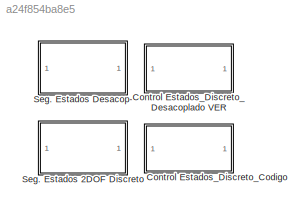
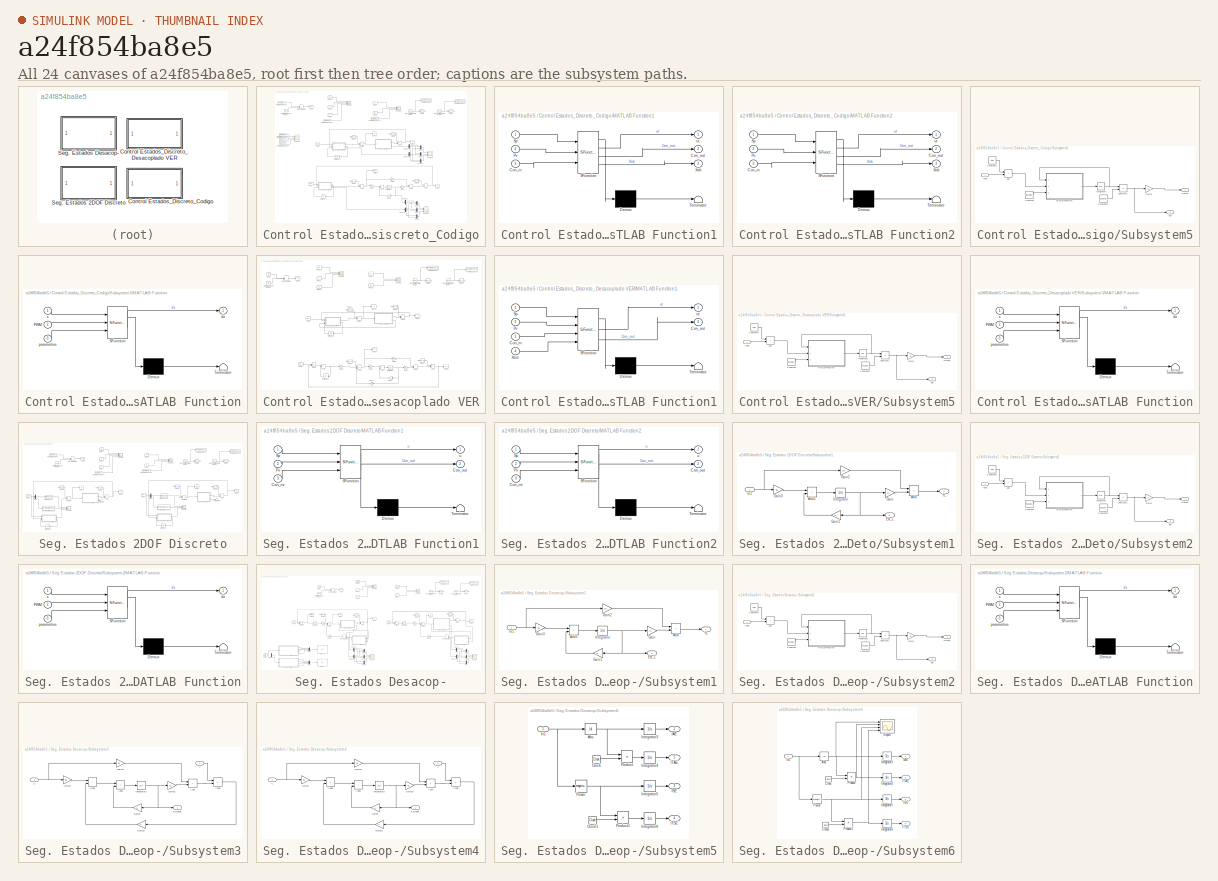
[diagram: thumbnail index - all 24 canvases of the model, root first then tree order]
MODEL slx_a24f854ba8e5
KIND model
CONFIG AbsTol = auto
CONFIG EnableMultiTasking = off
CONFIG FixedStep = auto
CONFIG MaxStep = 1e-3
CONFIG MinStep = auto
CONFIG RelTol = 1e-3
CONFIG SampleTimeConstraint = Unconstrained
CONFIG SolverName = ode23t
CONFIG StartTime = 0.0
CONFIG StopTime = 60
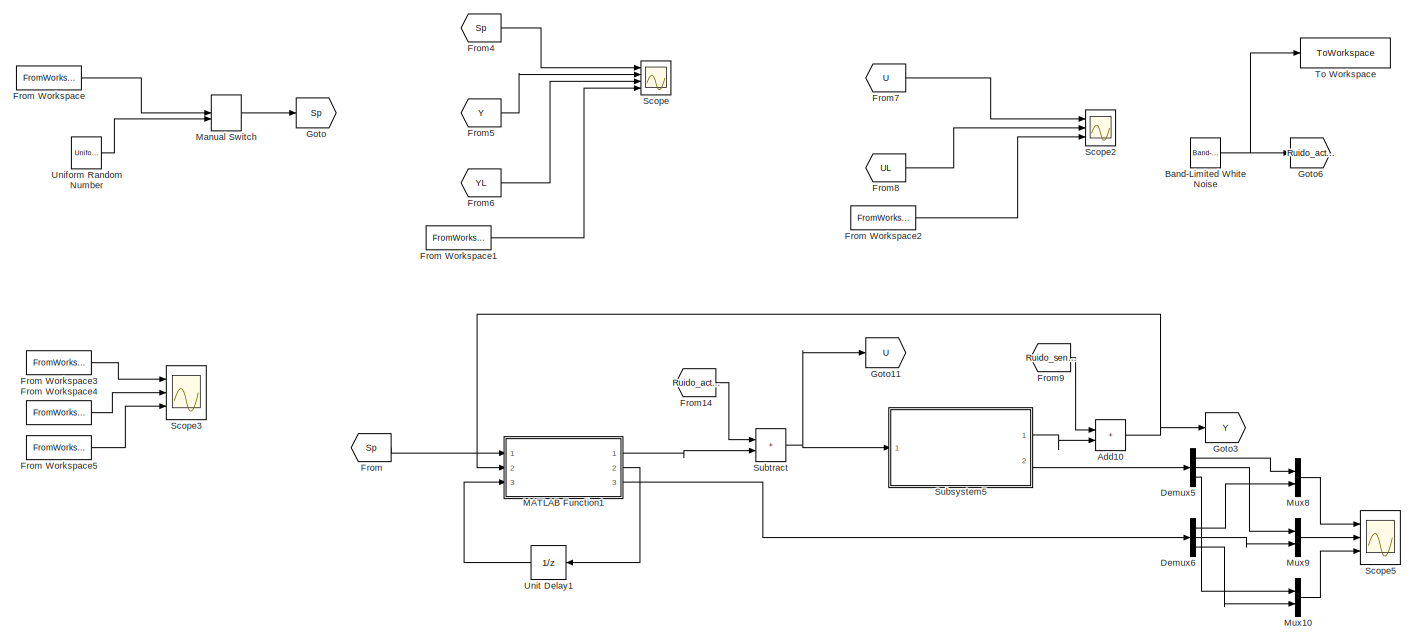
[diagram: Control Estados_Discreto_Codigo - part 1/3, full width, top band]
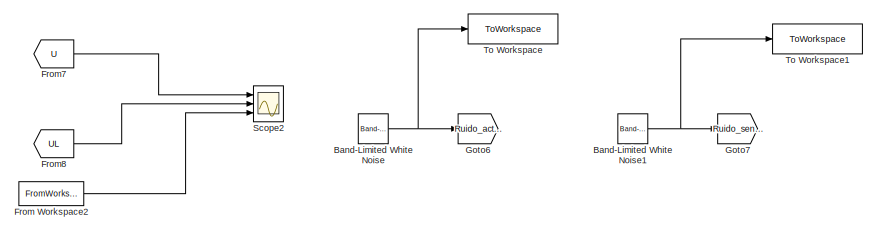
[diagram: Control Estados_Discreto_Codigo - part 2/3, top right region]
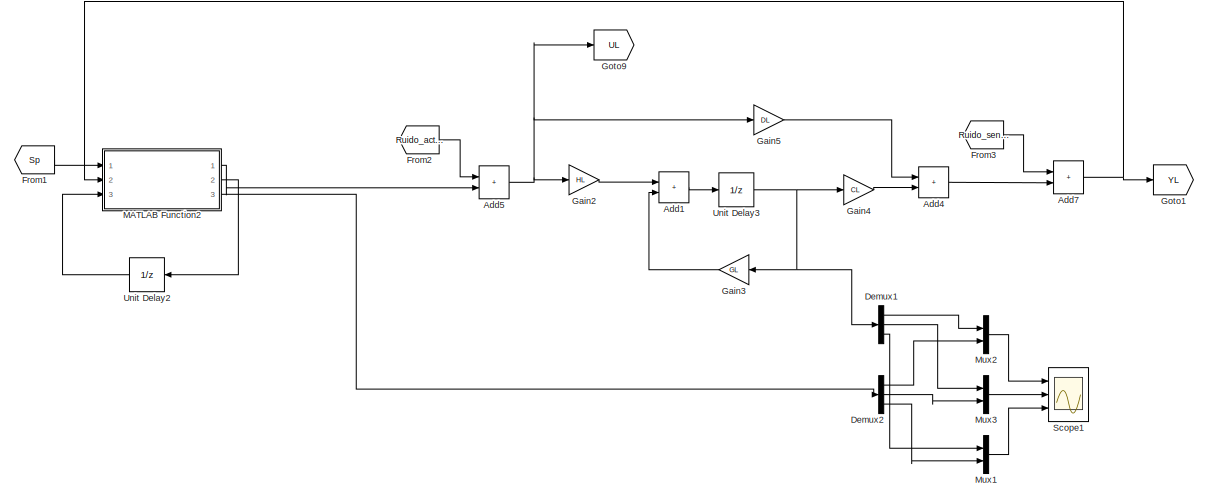
[diagram: Control Estados_Discreto_Codigo - part 3/3, bottom center region]
BLOCK [SubSystem] Control Estados_Discreto_Codigo
  Ports = []
  RequestExecContextInheritance = off
BLOCK [Sum] Control Estados_Discreto_Codigo/Add1
  IconShape = rectangular
  Ports = [2, 1]
BLOCK [Sum] Control Estados_Discreto_Codigo/Add10
  IconShape = rectangular
  Ports = [2, 1]
BLOCK [Sum] Control Estados_Discreto_Codigo/Add4
  IconShape = rectangular
  Ports = [2, 1]
BLOCK [Sum] Control Estados_Discreto_Codigo/Add5
  IconShape = rectangular
  Ports = [2, 1]
BLOCK [Sum] Control Estados_Discreto_Codigo/Add7
  IconShape = rectangular
  Ports = [2, 1]
BLOCK [Reference] Control Estados_Discreto_Codigo/Band-Limited White Noise  REF=simulink/Sources/Band-Limited
White Noise
  Ports = [0, 1]
  SourceBlock = simulink/Sources/Band-Limited\nWhite Noise
  SourceProductBaseCode = SL
  SourceType = Band-Limited White Noise.
BLOCK [Reference] Control Estados_Discreto_Codigo/Band-Limited White Noise1  REF=simulink/Sources/Band-Limited
White Noise
  Ports = [0, 1]
  SourceBlock = simulink/Sources/Band-Limited\nWhite Noise
  SourceProductBaseCode = SL
  SourceType = Band-Limited White Noise.
BLOCK [Demux] Control Estados_Discreto_Codigo/Demux1
  Outputs = 3
  Ports = [1, 3]
BLOCK [Demux] Control Estados_Discreto_Codigo/Demux2
  Outputs = 3
  Ports = [1, 3]
BLOCK [Demux] Control Estados_Discreto_Codigo/Demux5
  Outputs = 3
  Ports = [1, 3]
BLOCK [Demux] Control Estados_Discreto_Codigo/Demux6
  Outputs = 3
  Ports = [1, 3]
BLOCK [From] Control Estados_Discreto_Codigo/From
  GotoTag = Sp
BLOCK [FromWorkspace] Control Estados_Discreto_Codigo/From Workspace
  VariableName = [t' SP]
BLOCK [FromWorkspace] Control Estados_Discreto_Codigo/From Workspace1
  VariableName = [t' theta]
BLOCK [FromWorkspace] Control Estados_Discreto_Codigo/From Workspace2
  VariableName = [t' pwm]
BLOCK [FromWorkspace] Control Estados_Discreto_Codigo/From Workspace3
  VariableName = [t' i]
BLOCK [FromWorkspace] Control Estados_Discreto_Codigo/From Workspace4
  VariableName = [t' theta1]
BLOCK [FromWorkspace] Control Estados_Discreto_Codigo/From Workspace5
  VariableName = [t' vel]
BLOCK [From] Control Estados_Discreto_Codigo/From1
  GotoTag = Sp
BLOCK [From] Control Estados_Discreto_Codigo/From14
  GotoTag = Ruido_actuador
BLOCK [From] Control Estados_Discreto_Codigo/From2
  GotoTag = Ruido_actuador
BLOCK [From] Control Estados_Discreto_Codigo/From3
  GotoTag = Ruido_sensor
BLOCK [From] Control Estados_Discreto_Codigo/From4
  GotoTag = Sp
BLOCK [From] Control Estados_Discreto_Codigo/From5
  GotoTag = Y
BLOCK [From] Control Estados_Discreto_Codigo/From6
  GotoTag = YL
BLOCK [From] Control Estados_Discreto_Codigo/From7
  GotoTag = U
BLOCK [From] Control Estados_Discreto_Codigo/From8
  GotoTag = UL
BLOCK [From] Control Estados_Discreto_Codigo/From9
  GotoTag = Ruido_sensor
BLOCK [Gain] Control Estados_Discreto_Codigo/Gain2
  Gain = HL
  Multiplication = Matrix(K*u)
BLOCK [Gain] Control Estados_Discreto_Codigo/Gain3
  Gain = GL
  Multiplication = Matrix(K*u)
  NameLocation = top
BLOCK [Gain] Control Estados_Discreto_Codigo/Gain4
  Gain = CL
  Multiplication = Matrix(K*u)
BLOCK [Gain] Control Estados_Discreto_Codigo/Gain5
  Gain = DL
  Multiplication = Matrix(K*u)
BLOCK [Goto] Control Estados_Discreto_Codigo/Goto
  GotoTag = Sp
BLOCK [Goto] Control Estados_Discreto_Codigo/Goto1
  GotoTag = YL
BLOCK [Goto] Control Estados_Discreto_Codigo/Goto11
  GotoTag = U
BLOCK [Goto] Control Estados_Discreto_Codigo/Goto3
  GotoTag = Y
BLOCK [Goto] Control Estados_Discreto_Codigo/Goto6
  GotoTag = Ruido_actuador
BLOCK [Goto] Control Estados_Discreto_Codigo/Goto7
  GotoTag = Ruido_sensor
BLOCK [Goto] Control Estados_Discreto_Codigo/Goto9
  GotoTag = UL
BLOCK [SubSystem] Control Estados_Discreto_Codigo/MATLAB Function1
  ErrorFcn = Stateflow.Translate.translate
  PermitHierarchicalResolution = ExplicitOnly
  Ports = [3, 3]
  RequestExecContextInheritance = off
  SFBlockType = MATLAB Function
  TreatAsAtomicUnit = on
BLOCK [Demux] Control Estados_Discreto_Codigo/MATLAB Function1/ Demux 
  Outputs = 1
  Ports = [1, 1]
BLOCK [S-Function] Control Estados_Discreto_Codigo/MATLAB Function1/ SFunction 
  EnableBusSupport = on
  FunctionName = sf_sfun
  PortCounts = [3 4]
  Ports = [3, 4]
  SFcnIsStateOwnerBlock = off
  SFunctionDeploymentMode = off
  Tag = Stateflow S-Function 33
BLOCK [Terminator] Control Estados_Discreto_Codigo/MATLAB Function1/ Terminator 
BLOCK [Inport] Control Estados_Discreto_Codigo/MATLAB Function1/Con_in
  Port = 3
BLOCK [Outport] Control Estados_Discreto_Codigo/MATLAB Function1/Con_out
  Port = 2
  VectorParamsAs1DForOutWhenUnconnected = off
BLOCK [Inport] Control Estados_Discreto_Codigo/MATLAB Function1/Pv
  Port = 2
BLOCK [Inport] Control Estados_Discreto_Codigo/MATLAB Function1/Sp
BLOCK [Outport] Control Estados_Discreto_Codigo/MATLAB Function1/Xob
  Port = 3
BLOCK [Outport] Control Estados_Discreto_Codigo/MATLAB Function1/ut
  VectorParamsAs1DForOutWhenUnconnected = off
BLOCK [SubSystem] Control Estados_Discreto_Codigo/MATLAB Function2
  ErrorFcn = Stateflow.Translate.translate
  PermitHierarchicalResolution = ExplicitOnly
  Ports = [3, 3]
  RequestExecContextInheritance = off
  SFBlockType = MATLAB Function
  TreatAsAtomicUnit = on
BLOCK [Demux] Control Estados_Discreto_Codigo/MATLAB Function2/ Demux 
  Outputs = 1
  Ports = [1, 1]
BLOCK [S-Function] Control Estados_Discreto_Codigo/MATLAB Function2/ SFunction 
  EnableBusSupport = on
  FunctionName = sf_sfun
  PortCounts = [3 4]
  Ports = [3, 4]
  SFcnIsStateOwnerBlock = off
  SFunctionDeploymentMode = off
  Tag = Stateflow S-Function 2
BLOCK [Terminator] Control Estados_Discreto_Codigo/MATLAB Function2/ Terminator 
BLOCK [Inport] Control Estados_Discreto_Codigo/MATLAB Function2/Con_in
  Port = 3
BLOCK [Outport] Control Estados_Discreto_Codigo/MATLAB Function2/Con_out
  Port = 2
  VectorParamsAs1DForOutWhenUnconnected = off
BLOCK [Inport] Control Estados_Discreto_Codigo/MATLAB Function2/Pv
  Port = 2
BLOCK [Inport] Control Estados_Discreto_Codigo/MATLAB Function2/Sp
BLOCK [Outport] Control Estados_Discreto_Codigo/MATLAB Function2/Xob
  Port = 3
BLOCK [Outport] Control Estados_Discreto_Codigo/MATLAB Function2/ut
  VectorParamsAs1DForOutWhenUnconnected = off
BLOCK [ManualSwitch] Control Estados_Discreto_Codigo/Manual Switch
BLOCK [Mux] Control Estados_Discreto_Codigo/Mux1
  DisplayOption = bar
  Inputs = 2
  Ports = [2, 1]
BLOCK [Mux] Control Estados_Discreto_Codigo/Mux10
  DisplayOption = bar
  Inputs = 2
  Ports = [2, 1]
BLOCK [Mux] Control Estados_Discreto_Codigo/Mux2
  DisplayOption = bar
  Inputs = 2
  Ports = [2, 1]
BLOCK [Mux] Control Estados_Discreto_Codigo/Mux3
  DisplayOption = bar
  Inputs = 2
  Ports = [2, 1]
BLOCK [Mux] Control Estados_Discreto_Codigo/Mux8
  DisplayOption = bar
  Inputs = 2
  Ports = [2, 1]
BLOCK [Mux] Control Estados_Discreto_Codigo/Mux9
  DisplayOption = bar
  Inputs = 2
  Ports = [2, 1]
BLOCK [Scope] Control Estados_Discreto_Codigo/Scope
  Floating = off
  NumInputPorts = 4
  Ports = [4]
  ScopeSpecificationString = Simulink.scopes.TimeScopeBlockCfg('CurrentConfiguration', extmgr.ConfigurationSet(extmgr.Configuration('Core','General UI',true,'FigureColor',[1 1 1]),extmgr.Configuration('Core','Source UI',true),extmgr.Configuration('Sources','WiredSimulink',true,'DataLoggingVariableName','ScopeData1'),extmgr.Configuration('Visuals','Time Domain',true,'SerializedDisplays',{struct('MinYLimReal','-1.27219','MaxYLi...<+2488ch>
BLOCK [Scope] Control Estados_Discreto_Codigo/Scope1
  Floating = off
  NumInputPorts = 3
  Ports = [3]
  ScopeSpecificationString = Simulink.scopes.TimeScopeBlockCfg('CurrentConfiguration', extmgr.ConfigurationSet(extmgr.Configuration('Core','General UI',true,'FigureColor',[1 1 1]),extmgr.Configuration('Core','Source UI',true),extmgr.Configuration('Sources','WiredSimulink',true,'DataLoggingVariableName','ScopeData7'),extmgr.Configuration('Visuals','Time Domain',true,'SerializedDisplays',{struct('MinYLimReal','-0.58489','MaxYLi...<+4080ch>
BLOCK [Scope] Control Estados_Discreto_Codigo/Scope2
  Floating = off
  NumInputPorts = 3
  Ports = [3]
  ScopeSpecificationString = Simulink.scopes.TimeScopeBlockCfg('CurrentConfiguration', extmgr.ConfigurationSet(extmgr.Configuration('Core','General UI',true,'FigureColor',[1 1 1]),extmgr.Configuration('Core','Source UI',true),extmgr.Configuration('Sources','WiredSimulink',true,'DataLoggingVariableName','ScopeData2'),extmgr.Configuration('Visuals','Time Domain',true,'SerializedDisplays',{struct('MinYLimReal','-65.75','MaxYLimR...<+2435ch>
BLOCK [Scope] Control Estados_Discreto_Codigo/Scope3
  Floating = off
  NumInputPorts = 3
  Ports = [3]
  ScopeSpecificationString = Simulink.scopes.TimeScopeBlockCfg('CurrentConfiguration', extmgr.ConfigurationSet(extmgr.Configuration('Core','General UI',true,'FigureColor',[1 1 1]),extmgr.Configuration('Core','Source UI',true),extmgr.Configuration('Sources','WiredSimulink',true,'DataLoggingVariableName','ScopeData3'),extmgr.Configuration('Visuals','Time Domain',true,'SerializedDisplays',{struct('MinYLimReal','-1.19','MaxYLimRe...<+4031ch>
BLOCK [Scope] Control Estados_Discreto_Codigo/Scope5
  Floating = off
  NumInputPorts = 3
  Ports = [3]
  ScopeSpecificationString = Simulink.scopes.TimeScopeBlockCfg('CurrentConfiguration', extmgr.ConfigurationSet(extmgr.Configuration('Core','General UI',true,'FigureColor',[1 1 1]),extmgr.Configuration('Core','Source UI',true),extmgr.Configuration('Sources','WiredSimulink',true,'DataLoggingVariableName','ScopeData4'),extmgr.Configuration('Visuals','Time Domain',true,'SerializedDisplays',{struct('MinYLimReal','-1.19','MaxYLimRe...<+4075ch>
BLOCK [SubSystem] Control Estados_Discreto_Codigo/Subsystem5
  Ports = [1, 2]
  RequestExecContextInheritance = off
BLOCK [Sum] Control Estados_Discreto_Codigo/Subsystem5/Add
  IconShape = rectangular
  Ports = [2, 1]
BLOCK [Constant] Control Estados_Discreto_Codigo/Subsystem5/Constant
  Value = [Ro,Lo,Kio, Kvo, Jmo, Jlo, Bmo, Blo, no, go, do, mo]
BLOCK [Constant] Control Estados_Discreto_Codigo/Subsystem5/Constant1
  Value = Vin0
BLOCK [Constant] Control Estados_Discreto_Codigo/Subsystem5/Constant2
  Value = [X10; X20;X30]
BLOCK [Outport] Control Estados_Discreto_Codigo/Subsystem5/Est
  Port = 2
BLOCK [Gain] Control Estados_Discreto_Codigo/Subsystem5/Gain1
  Gain = CL
  Multiplication = Matrix(K*u)
BLOCK [Inport] Control Estados_Discreto_Codigo/Subsystem5/Input
BLOCK [Integrator] Control Estados_Discreto_Codigo/Subsystem5/Integrator
  InitialCondition = [X10; X20;X30]
  Ports = [1, 1]
BLOCK [SubSystem] Control Estados_Discreto_Codigo/Subsystem5/MATLAB Function
  ErrorFcn = Stateflow.Translate.translate
  PermitHierarchicalResolution = ExplicitOnly
  Ports = [3, 1]
  RequestExecContextInheritance = off
  SFBlockType = MATLAB Function
  TreatAsAtomicUnit = on
BLOCK [Demux] Control Estados_Discreto_Codigo/Subsystem5/MATLAB Function/ Demux 
  Outputs = 1
  Ports = [1, 1]
BLOCK [S-Function] Control Estados_Discreto_Codigo/Subsystem5/MATLAB Function/ SFunction 
  EnableBusSupport = on
  FunctionName = sf_sfun
  PortCounts = [3 2]
  Ports = [3, 2]
  SFcnIsStateOwnerBlock = off
  SFunctionDeploymentMode = off
  Tag = Stateflow S-Function 1
BLOCK [Terminator] Control Estados_Discreto_Codigo/Subsystem5/MATLAB Function/ Terminator 
BLOCK [Inport] Control Estados_Discreto_Codigo/Subsystem5/MATLAB Function/PWM
  Port = 2
BLOCK [Outport] Control Estados_Discreto_Codigo/Subsystem5/MATLAB Function/dx
BLOCK [Inport] Control Estados_Discreto_Codigo/Subsystem5/MATLAB Function/parametros
  Port = 3
BLOCK [Inport] Control Estados_Discreto_Codigo/Subsystem5/MATLAB Function/x
BLOCK [Outport] Control Estados_Discreto_Codigo/Subsystem5/Output
BLOCK [Sum] Control Estados_Discreto_Codigo/Subsystem5/Subtract1
  IconShape = rectangular
  Inputs = +-
  Ports = [2, 1]
BLOCK [Sum] Control Estados_Discreto_Codigo/Subtract
  IconShape = rectangular
  Ports = [2, 1]
BLOCK [ToWorkspace] Control Estados_Discreto_Codigo/To Workspace
  FixptAsFi = on
  MaxDataPoints = inf
  Ports = [1]
  SampleTime = -1
  VariableName = Ruido_actuador2
BLOCK [ToWorkspace] Control Estados_Discreto_Codigo/To Workspace1
  FixptAsFi = on
  MaxDataPoints = inf
  Ports = [1]
  SampleTime = -1
  VariableName = Ruido_sensor2
BLOCK [UniformRandomNumber] Control Estados_Discreto_Codigo/Uniform Random Number
  Maximum = 60*(pi/180)
  Minimum = -60*(pi/180)
  SampleTime = 10
BLOCK [UnitDelay] Control Estados_Discreto_Codigo/Unit Delay1
  HasFrameUpgradeWarning = on
  InitialCondition = zeros(5,1)
  NameLocation = top
  SampleTime = Tm
BLOCK [UnitDelay] Control Estados_Discreto_Codigo/Unit Delay2
  HasFrameUpgradeWarning = on
  InitialCondition = zeros(5,1)
  NameLocation = top
  SampleTime = Tm
BLOCK [UnitDelay] Control Estados_Discreto_Codigo/Unit Delay3
  HasFrameUpgradeWarning = on
  SampleTime = Tm
BLOCK [SubSystem] Control Estados_Discreto_Desacoplado VER
  Commented = on
  Ports = []
  RequestExecContextInheritance = off
BLOCK [Sum] Control Estados_Discreto_Desacoplado VER/Add1
  IconShape = rectangular
  Ports = [2, 1]
BLOCK [Sum] Control Estados_Discreto_Desacoplado VER/Add10
  IconShape = rectangular
  Ports = [2, 1]
BLOCK [Sum] Control Estados_Discreto_Desacoplado VER/Add2
  IconShape = rectangular
  Inputs = +-
  Ports = [2, 1]
BLOCK [Sum] Control Estados_Discreto_Desacoplado VER/Add4
  IconShape = rectangular
  Ports = [2, 1]
BLOCK [Sum] Control Estados_Discreto_Desacoplado VER/Add5
  IconShape = rectangular
  Inputs = ++-
  Ports = [3, 1]
BLOCK [Sum] Control Estados_Discreto_Desacoplado VER/Add7
  IconShape = rectangular
  Ports = [2, 1]
BLOCK [Sum] Control Estados_Discreto_Desacoplado VER/Add9
  IconShape = rectangular
  Ports = [2, 1]
BLOCK [Reference] Control Estados_Discreto_Desacoplado VER/Band-Limited White Noise  REF=simulink/Sources/Band-Limited
White Noise
  Ports = [0, 1]
  SourceBlock = simulink/Sources/Band-Limited\nWhite Noise
  SourceProductBaseCode = SL
  SourceType = Band-Limited White Noise.
BLOCK [Reference] Control Estados_Discreto_Desacoplado VER/Band-Limited White Noise1  REF=simulink/Sources/Band-Limited
White Noise
  Ports = [0, 1]
  SourceBlock = simulink/Sources/Band-Limited\nWhite Noise
  SourceProductBaseCode = SL
  SourceType = Band-Limited White Noise.
BLOCK [From] Control Estados_Discreto_Desacoplado VER/From
  GotoTag = Sp
BLOCK [From] Control Estados_Discreto_Desacoplado VER/From1
  GotoTag = Sp
BLOCK [From] Control Estados_Discreto_Desacoplado VER/From14
  GotoTag = Ruido_actuador
BLOCK [From] Control Estados_Discreto_Desacoplado VER/From2
  GotoTag = Ruido_actuador
BLOCK [From] Control Estados_Discreto_Desacoplado VER/From21
  GotoTag = Sp
BLOCK [From] Control Estados_Discreto_Desacoplado VER/From22
  GotoTag = Y
BLOCK [From] Control Estados_Discreto_Desacoplado VER/From23
  GotoTag = YL
BLOCK [From] Control Estados_Discreto_Desacoplado VER/From24
  GotoTag = U
BLOCK [From] Control Estados_Discreto_Desacoplado VER/From25
  GotoTag = UL
BLOCK [From] Control Estados_Discreto_Desacoplado VER/From3
  GotoTag = Ruido_sensor
BLOCK [From] Control Estados_Discreto_Desacoplado VER/From9
  GotoTag = Ruido_sensor
BLOCK [Gain] Control Estados_Discreto_Desacoplado VER/Gain2
  Gain = HL
  Multiplication = Matrix(K*u)
BLOCK [Gain] Control Estados_Discreto_Desacoplado VER/Gain3
  Gain = GL
  Multiplication = Matrix(K*u)
  NameLocation = top
BLOCK [Gain] Control Estados_Discreto_Desacoplado VER/Gain4
  Gain = CL
  Multiplication = Matrix(K*u)
BLOCK [Gain] Control Estados_Discreto_Desacoplado VER/Gain5
  Gain = DL
  Multiplication = Matrix(K*u)
BLOCK [Gain] Control Estados_Discreto_Desacoplado VER/Gain6
  Gain = Ki
  Multiplication = Matrix(K*u)
BLOCK [Gain] Control Estados_Discreto_Desacoplado VER/Gain7
  Gain = Kest
  Multiplication = Matrix(K*u)
  NameLocation = top
BLOCK [Goto] Control Estados_Discreto_Desacoplado VER/Goto1
  GotoTag = YL
BLOCK [Goto] Control Estados_Discreto_Desacoplado VER/Goto11
  GotoTag = U
BLOCK [Goto] Control Estados_Discreto_Desacoplado VER/Goto2
  GotoTag = Sp
BLOCK [Goto] Control Estados_Discreto_Desacoplado VER/Goto3
  GotoTag = Y
BLOCK [Goto] Control Estados_Discreto_Desacoplado VER/Goto6
  GotoTag = Ruido_actuador
BLOCK [Goto] Control Estados_Discreto_Desacoplado VER/Goto7
  GotoTag = Ruido_sensor
BLOCK [Goto] Control Estados_Discreto_Desacoplado VER/Goto9
  GotoTag = UL
BLOCK [SubSystem] Control Estados_Discreto_Desacoplado VER/MATLAB Function1
  ErrorFcn = Stateflow.Translate.translate
  PermitHierarchicalResolution = ExplicitOnly
  Ports = [4, 2]
  RequestExecContextInheritance = off
  SFBlockType = MATLAB Function
  TreatAsAtomicUnit = on
BLOCK [Demux] Control Estados_Discreto_Desacoplado VER/MATLAB Function1/ Demux 
  Outputs = 1
  Ports = [1, 1]
BLOCK [S-Function] Control Estados_Discreto_Desacoplado VER/MATLAB Function1/ SFunction 
  EnableBusSupport = on
  FunctionName = sf_sfun
  PortCounts = [4 3]
  Ports = [4, 3]
  SFcnIsStateOwnerBlock = off
  SFunctionDeploymentMode = off
  Tag = Stateflow S-Function 4
BLOCK [Terminator] Control Estados_Discreto_Desacoplado VER/MATLAB Function1/ Terminator 
BLOCK [Inport] Control Estados_Discreto_Desacoplado VER/MATLAB Function1/Con_in
  Port = 3
BLOCK [Outport] Control Estados_Discreto_Desacoplado VER/MATLAB Function1/Con_out
  Port = 2
  VectorParamsAs1DForOutWhenUnconnected = off
BLOCK [Inport] Control Estados_Discreto_Desacoplado VER/MATLAB Function1/Pv
  Port = 2
BLOCK [Inport] Control Estados_Discreto_Desacoplado VER/MATLAB Function1/Sp
BLOCK [Inport] Control Estados_Discreto_Desacoplado VER/MATLAB Function1/Xest
  Port = 4
BLOCK [Outport] Control Estados_Discreto_Desacoplado VER/MATLAB Function1/ut
  VectorParamsAs1DForOutWhenUnconnected = off
BLOCK [ManualSwitch] Control Estados_Discreto_Desacoplado VER/Manual Switch
  CurrentSetting = 0
BLOCK [Scope] Control Estados_Discreto_Desacoplado VER/Scope2
  Floating = off
  NumInputPorts = 3
  Ports = [3]
  ScopeSpecificationString = Simulink.scopes.TimeScopeBlockCfg('CurrentConfiguration', extmgr.ConfigurationSet(extmgr.Configuration('Core','General UI',true,'FigureColor',[1 1 1]),extmgr.Configuration('Core','Source UI',true),extmgr.Configuration('Sources','WiredSimulink',true,'DataLoggingVariableName','ScopeData5'),extmgr.Configuration('Visuals','Time Domain',true,'SerializedDisplays',{struct('MinYLimReal','-1.21664','MaxYLi...<+2476ch>
BLOCK [Scope] Control Estados_Discreto_Desacoplado VER/Scope3
  Floating = off
  NumInputPorts = 2
  Ports = [2]
  ScopeSpecificationString = Simulink.scopes.TimeScopeBlockCfg('CurrentConfiguration', extmgr.ConfigurationSet(extmgr.Configuration('Core','General UI',true,'FigureColor',[1 1 1]),extmgr.Configuration('Core','Source UI',true),extmgr.Configuration('Sources','WiredSimulink',true,'DataLoggingVariableName','ScopeData6'),extmgr.Configuration('Visuals','Time Domain',true,'SerializedDisplays',{struct('MinYLimReal','-48.88136','MaxYL...<+2472ch>
BLOCK [Step] Control Estados_Discreto_Desacoplado VER/Step
  After = 30*(pi/180)
  SampleTime = 0
  Time = 0
BLOCK [SubSystem] Control Estados_Discreto_Desacoplado VER/Subsystem5
  Ports = [1, 2]
  RequestExecContextInheritance = off
BLOCK [Sum] Control Estados_Discreto_Desacoplado VER/Subsystem5/Add
  IconShape = rectangular
  Ports = [2, 1]
BLOCK [Constant] Control Estados_Discreto_Desacoplado VER/Subsystem5/Constant
  Value = [Ro,Lo,Kio, Kvo, Jmo, Jlo, Bmo, Blo, no, go, do, mo]
BLOCK [Constant] Control Estados_Discreto_Desacoplado VER/Subsystem5/Constant1
  Value = Vin0
BLOCK [Constant] Control Estados_Discreto_Desacoplado VER/Subsystem5/Constant2
  Value = [X10; X20;X30]
BLOCK [Outport] Control Estados_Discreto_Desacoplado VER/Subsystem5/Est
  Port = 2
BLOCK [Gain] Control Estados_Discreto_Desacoplado VER/Subsystem5/Gain1
  Gain = CL
  Multiplication = Matrix(K*u)
BLOCK [Inport] Control Estados_Discreto_Desacoplado VER/Subsystem5/Input
BLOCK [Integrator] Control Estados_Discreto_Desacoplado VER/Subsystem5/Integrator
  InitialCondition = [X10; X20;X30]
  Ports = [1, 1]
BLOCK [SubSystem] Control Estados_Discreto_Desacoplado VER/Subsystem5/MATLAB Function
  ErrorFcn = Stateflow.Translate.translate
  PermitHierarchicalResolution = ExplicitOnly
  Ports = [3, 1]
  RequestExecContextInheritance = off
  SFBlockType = MATLAB Function
  TreatAsAtomicUnit = on
BLOCK [Demux] Control Estados_Discreto_Desacoplado VER/Subsystem5/MATLAB Function/ Demux 
  Outputs = 1
  Ports = [1, 1]
BLOCK [S-Function] Control Estados_Discreto_Desacoplado VER/Subsystem5/MATLAB Function/ SFunction 
  EnableBusSupport = on
  FunctionName = sf_sfun
  PortCounts = [3 2]
  Ports = [3, 2]
  SFcnIsStateOwnerBlock = off
  SFunctionDeploymentMode = off
  Tag = Stateflow S-Function 10
BLOCK [Terminator] Control Estados_Discreto_Desacoplado VER/Subsystem5/MATLAB Function/ Terminator 
BLOCK [Inport] Control Estados_Discreto_Desacoplado VER/Subsystem5/MATLAB Function/PWM
  Port = 2
BLOCK [Outport] Control Estados_Discreto_Desacoplado VER/Subsystem5/MATLAB Function/dx
BLOCK [Inport] Control Estados_Discreto_Desacoplado VER/Subsystem5/MATLAB Function/parametros
  Port = 3
BLOCK [Inport] Control Estados_Discreto_Desacoplado VER/Subsystem5/MATLAB Function/x
BLOCK [Outport] Control Estados_Discreto_Desacoplado VER/Subsystem5/Output
BLOCK [Sum] Control Estados_Discreto_Desacoplado VER/Subsystem5/Subtract1
  IconShape = rectangular
  Inputs = +-
  Ports = [2, 1]
BLOCK [Sum] Control Estados_Discreto_Desacoplado VER/Subtract
  IconShape = rectangular
  Ports = [2, 1]
BLOCK [ToWorkspace] Control Estados_Discreto_Desacoplado VER/To Workspace
  FixptAsFi = on
  MaxDataPoints = inf
  Ports = [1]
  SampleTime = -1
  VariableName = Ruido_actuador2
BLOCK [ToWorkspace] Control Estados_Discreto_Desacoplado VER/To Workspace1
  FixptAsFi = on
  MaxDataPoints = inf
  Ports = [1]
  SampleTime = -1
  VariableName = Ruido_sensor2
BLOCK [UniformRandomNumber] Control Estados_Discreto_Desacoplado VER/Uniform Random Number
  Maximum = 60*(pi/180)
  Minimum = -60*(pi/180)
  SampleTime = 10
BLOCK [UnitDelay] Control Estados_Discreto_Desacoplado VER/Unit Delay1
  HasFrameUpgradeWarning = on
  InitialCondition = zeros(2,1)
  NameLocation = top
  SampleTime = Tm
BLOCK [UnitDelay] Control Estados_Discreto_Desacoplado VER/Unit Delay2
  HasFrameUpgradeWarning = on
  NameLocation = top
  SampleTime = Tm
BLOCK [UnitDelay] Control Estados_Discreto_Desacoplado VER/Unit Delay3
  HasFrameUpgradeWarning = on
  SampleTime = Tm
BLOCK [SubSystem] Seg. Estados 2DOF Discreto
  Commented = on
  Ports = []
  RequestExecContextInheritance = off
BLOCK [Sum] Seg. Estados 2DOF Discreto/Add
  IconShape = rectangular
  Ports = [2, 1]
BLOCK [Sum] Seg. Estados 2DOF Discreto/Add1
  IconShape = rectangular
  Ports = [2, 1]
BLOCK [Reference] Seg. Estados 2DOF Discreto/Band-Limited White Noise  REF=simulink/Sources/Band-Limited
White Noise
  Ports = [0, 1]
  SourceBlock = simulink/Sources/Band-Limited\nWhite Noise
  SourceProductBaseCode = SL
  SourceType = Band-Limited White Noise.
BLOCK [Reference] Seg. Estados 2DOF Discreto/Band-Limited White Noise1  REF=simulink/Sources/Band-Limited
White Noise
  Ports = [0, 1]
  SourceBlock = simulink/Sources/Band-Limited\nWhite Noise
  SourceProductBaseCode = SL
  SourceType = Band-Limited White Noise.
BLOCK [DiscreteStateSpace] Seg. Estados 2DOF Discreto/Discrete State-Space
  A = sys_d2.a
  B = sys_d2.b
  C = sys_d2.c
  D = sys_d2.d
  SampleTime = Tm
BLOCK [DiscreteStateSpace] Seg. Estados 2DOF Discreto/Discrete State-Space1
  A = sys_d2.a
  B = sys_d2.b
  C = sys_d2.c
  D = sys_d2.d
  SampleTime = Tm
BLOCK [From] Seg. Estados 2DOF Discreto/From
  GotoTag = Sp
BLOCK [FromWorkspace] Seg. Estados 2DOF Discreto/From Workspace
  VariableName = [t' SP]
BLOCK [FromWorkspace] Seg. Estados 2DOF Discreto/From Workspace1
  VariableName = [t' theta]
BLOCK [FromWorkspace] Seg. Estados 2DOF Discreto/From Workspace2
  VariableName = [t' pwm]
BLOCK [From] Seg. Estados 2DOF Discreto/From1
  GotoTag = Sp
BLOCK [From] Seg. Estados 2DOF Discreto/From10
  GotoTag = Ruido_sensor
BLOCK [From] Seg. Estados 2DOF Discreto/From2
  GotoTag = Y
BLOCK [From] Seg. Estados 2DOF Discreto/From3
  GotoTag = Sp
BLOCK [From] Seg. Estados 2DOF Discreto/From4
  GotoTag = YL
BLOCK [From] Seg. Estados 2DOF Discreto/From5
  GotoTag = Ruido_actuador
BLOCK [From] Seg. Estados 2DOF Discreto/From6
  GotoTag = U
BLOCK [From] Seg. Estados 2DOF Discreto/From7
  GotoTag = UL
BLOCK [From] Seg. Estados 2DOF Discreto/From8
  GotoTag = Ruido_actuador
BLOCK [From] Seg. Estados 2DOF Discreto/From9
  GotoTag = Ruido_sensor
BLOCK [Goto] Seg. Estados 2DOF Discreto/Goto
  GotoTag = Sp
BLOCK [Goto] Seg. Estados 2DOF Discreto/Goto1
  GotoTag = Y
BLOCK [Goto] Seg. Estados 2DOF Discreto/Goto2
  GotoTag = YL
BLOCK [Goto] Seg. Estados 2DOF Discreto/Goto3
  GotoTag = U
BLOCK [Goto] Seg. Estados 2DOF Discreto/Goto4
  GotoTag = UL
BLOCK [Goto] Seg. Estados 2DOF Discreto/Goto6
  GotoTag = Ruido_actuador
BLOCK [Goto] Seg. Estados 2DOF Discreto/Goto7
  GotoTag = Ruido_sensor
BLOCK [SubSystem] Seg. Estados 2DOF Discreto/MATLAB Function1
  Commented = on
  ErrorFcn = Stateflow.Translate.translate
  PermitHierarchicalResolution = ExplicitOnly
  Ports = [3, 2]
  RequestExecContextInheritance = off
  SFBlockType = MATLAB Function
  TreatAsAtomicUnit = on
BLOCK [Demux] Seg. Estados 2DOF Discreto/MATLAB Function1/ Demux 
  Outputs = 1
  Ports = [1, 1]
BLOCK [S-Function] Seg. Estados 2DOF Discreto/MATLAB Function1/ SFunction 
  EnableBusSupport = on
  FunctionName = sf_sfun
  PortCounts = [3 3]
  Ports = [3, 3]
  SFcnIsStateOwnerBlock = off
  SFunctionDeploymentMode = off
  Tag = Stateflow S-Function 8
BLOCK [Terminator] Seg. Estados 2DOF Discreto/MATLAB Function1/ Terminator 
BLOCK [Inport] Seg. Estados 2DOF Discreto/MATLAB Function1/Con_ini
  Port = 3
BLOCK [Outport] Seg. Estados 2DOF Discreto/MATLAB Function1/Con_out
  Port = 2
  VectorParamsAs1DForOutWhenUnconnected = off
BLOCK [Inport] Seg. Estados 2DOF Discreto/MATLAB Function1/Pv
  Port = 2
BLOCK [Inport] Seg. Estados 2DOF Discreto/MATLAB Function1/Sp
BLOCK [Outport] Seg. Estados 2DOF Discreto/MATLAB Function1/u
  VectorParamsAs1DForOutWhenUnconnected = off
BLOCK [SubSystem] Seg. Estados 2DOF Discreto/MATLAB Function2
  ErrorFcn = Stateflow.Translate.translate
  PermitHierarchicalResolution = ExplicitOnly
  Ports = [3, 2]
  RequestExecContextInheritance = off
  SFBlockType = MATLAB Function
  TreatAsAtomicUnit = on
BLOCK [Demux] Seg. Estados 2DOF Discreto/MATLAB Function2/ Demux 
  Outputs = 1
  Ports = [1, 1]
BLOCK [S-Function] Seg. Estados 2DOF Discreto/MATLAB Function2/ SFunction 
  EnableBusSupport = on
  FunctionName = sf_sfun
  PortCounts = [3 3]
  Ports = [3, 3]
  SFcnIsStateOwnerBlock = off
  SFunctionDeploymentMode = off
  Tag = Stateflow S-Function 7
BLOCK [Terminator] Seg. Estados 2DOF Discreto/MATLAB Function2/ Terminator 
BLOCK [Inport] Seg. Estados 2DOF Discreto/MATLAB Function2/Con_ini
  Port = 3
BLOCK [Outport] Seg. Estados 2DOF Discreto/MATLAB Function2/Con_out
  Port = 2
  VectorParamsAs1DForOutWhenUnconnected = off
BLOCK [Inport] Seg. Estados 2DOF Discreto/MATLAB Function2/Pv
  Port = 2
BLOCK [Inport] Seg. Estados 2DOF Discreto/MATLAB Function2/Sp
BLOCK [Outport] Seg. Estados 2DOF Discreto/MATLAB Function2/u
  VectorParamsAs1DForOutWhenUnconnected = off
BLOCK [ManualSwitch] Seg. Estados 2DOF Discreto/Manual Switch
BLOCK [Mux] Seg. Estados 2DOF Discreto/Mux
  DisplayOption = bar
  Inputs = 2
  Ports = [2, 1]
BLOCK [Mux] Seg. Estados 2DOF Discreto/Mux1
  DisplayOption = bar
  Inputs = 2
  Ports = [2, 1]
BLOCK [Scope] Seg. Estados 2DOF Discreto/Scope
  Floating = off
  NumInputPorts = 4
  Ports = [4]
  ScopeSpecificationString = Simulink.scopes.TimeScopeBlockCfg('CurrentConfiguration', extmgr.ConfigurationSet(extmgr.Configuration('Core','General UI',true,'FigureColor',[1 1 1]),extmgr.Configuration('Core','Source UI',true),extmgr.Configuration('Sources','WiredSimulink',true,'DataLoggingVariableName','ScopeData2'),extmgr.Configuration('Visuals','Time Domain',true,'SerializedDisplays',{struct('MinYLimReal','-1.5643','MaxYLim...<+2486ch>
BLOCK [Scope] Seg. Estados 2DOF Discreto/Scope1
  Floating = off
  NumInputPorts = 3
  Ports = [3]
  ScopeSpecificationString = Simulink.scopes.TimeScopeBlockCfg('CurrentConfiguration', extmgr.ConfigurationSet(extmgr.Configuration('Core','General UI',true,'FigureColor',[1 1 1]),extmgr.Configuration('Core','Source UI',true),extmgr.Configuration('Sources','WiredSimulink',true,'DataLoggingVariableName','ScopeData3'),extmgr.Configuration('Visuals','Time Domain',true,'SerializedDisplays',{struct('MinYLimReal','-76.2375','MaxYLi...<+2447ch>
BLOCK [Scope] Seg. Estados 2DOF Discreto/Scope2
  Floating = off
  NumInputPorts = 3
  Ports = [3]
  ScopeSpecificationString = Simulink.scopes.TimeScopeBlockCfg('CurrentConfiguration', extmgr.ConfigurationSet(extmgr.Configuration('Core','General UI',true,'FigureColor',[1 1 1]),extmgr.Configuration('Core','Source UI',true),extmgr.Configuration('Sources','WiredSimulink',true,'DataLoggingVariableName','ScopeData1'),extmgr.Configuration('Visuals','Time Domain',true,'SerializedDisplays',{struct('MinYLimReal','-31.23893','MaxYL...<+4188ch>
BLOCK [Scope] Seg. Estados 2DOF Discreto/Scope3
  Floating = off
  NumInputPorts = 3
  Ports = [3]
  ScopeSpecificationString = Simulink.scopes.TimeScopeBlockCfg('CurrentConfiguration', extmgr.ConfigurationSet(extmgr.Configuration('Core','General UI',true,'FigureColor',[1 1 1]),extmgr.Configuration('Core','Source UI',true),extmgr.Configuration('Sources','WiredSimulink',true,'DataLoggingVariableName','ScopeData6'),extmgr.Configuration('Visuals','Time Domain',true,'SerializedDisplays',{struct('MinYLimReal','-2.53233','MaxYLi...<+4300ch>
BLOCK [StateSpace] Seg. Estados 2DOF Discreto/State-Space1
  A = Ac_2
  B = Bc_2
  C = Cc_2
  D = Dc_2
  InitialCondition = 0
  Ports = [1, 1]
BLOCK [StateSpace] Seg. Estados 2DOF Discreto/State-Space2
  A = Ac_2
  B = Bc_2
  C = Cc_2
  D = Dc_2
  InitialCondition = 0
  Ports = [1, 1]
BLOCK [SubSystem] Seg. Estados 2DOF Discreto/Subsystem1
  Ports = [1, 2]
  RequestExecContextInheritance = off
BLOCK [Sum] Seg. Estados 2DOF Discreto/Subsystem1/Add
  IconShape = rectangular
  Ports = [2, 1]
BLOCK [Sum] Seg. Estados 2DOF Discreto/Subsystem1/Add1
  IconShape = rectangular
  Ports = [2, 1]
BLOCK [Outport] Seg. Estados 2DOF Discreto/Subsystem1/Est_L
  Port = 2
BLOCK [Gain] Seg. Estados 2DOF Discreto/Subsystem1/Gain
  Gain = CL
  Multiplication = Matrix(K*u)
BLOCK [Gain] Seg. Estados 2DOF Discreto/Subsystem1/Gain1
  Gain = AL
  Multiplication = Matrix(K*u)
  NameLocation = top
BLOCK [Gain] Seg. Estados 2DOF Discreto/Subsystem1/Gain2
  Gain = DL
  Multiplication = Matrix(K*u)
BLOCK [Gain] Seg. Estados 2DOF Discreto/Subsystem1/Gain3
  Gain = BL
  Multiplication = Matrix(K*u)
BLOCK [Inport] Seg. Estados 2DOF Discreto/Subsystem1/In1
BLOCK [Integrator] Seg. Estados 2DOF Discreto/Subsystem1/Integrator
  Ports = [1, 1]
BLOCK [Outport] Seg. Estados 2DOF Discreto/Subsystem1/YL
BLOCK [SubSystem] Seg. Estados 2DOF Discreto/Subsystem2
  Ports = [1, 2]
  RequestExecContextInheritance = off
BLOCK [Sum] Seg. Estados 2DOF Discreto/Subsystem2/Add
  IconShape = rectangular
  Ports = [2, 1]
BLOCK [Constant] Seg. Estados 2DOF Discreto/Subsystem2/Constant
  Value = [Ro,Lo,Kio, Kvo, Jmo, Jlo, Bmo, Blo, no, go, do, mo]
BLOCK [Constant] Seg. Estados 2DOF Discreto/Subsystem2/Constant1
  Value = Vin0
BLOCK [Constant] Seg. Estados 2DOF Discreto/Subsystem2/Constant2
  Value = [X10; X20;X30]
BLOCK [Outport] Seg. Estados 2DOF Discreto/Subsystem2/Est
  Port = 2
BLOCK [Gain] Seg. Estados 2DOF Discreto/Subsystem2/Gain1
  Gain = CL
  Multiplication = Matrix(K*u)
BLOCK [Inport] Seg. Estados 2DOF Discreto/Subsystem2/Input
BLOCK [Integrator] Seg. Estados 2DOF Discreto/Subsystem2/Integrator
  InitialCondition = [X10; X20;X30]
  Ports = [1, 1]
BLOCK [SubSystem] Seg. Estados 2DOF Discreto/Subsystem2/MATLAB Function
  ErrorFcn = Stateflow.Translate.translate
  PermitHierarchicalResolution = ExplicitOnly
  Ports = [3, 1]
  RequestExecContextInheritance = off
  SFBlockType = MATLAB Function
  TreatAsAtomicUnit = on
BLOCK [Demux] Seg. Estados 2DOF Discreto/Subsystem2/MATLAB Function/ Demux 
  Outputs = 1
  Ports = [1, 1]
BLOCK [S-Function] Seg. Estados 2DOF Discreto/Subsystem2/MATLAB Function/ SFunction 
  EnableBusSupport = on
  FunctionName = sf_sfun
  PortCounts = [3 2]
  Ports = [3, 2]
  SFcnIsStateOwnerBlock = off
  SFunctionDeploymentMode = off
  Tag = Stateflow S-Function 6
BLOCK [Terminator] Seg. Estados 2DOF Discreto/Subsystem2/MATLAB Function/ Terminator 
BLOCK [Inport] Seg. Estados 2DOF Discreto/Subsystem2/MATLAB Function/PWM
  Port = 2
BLOCK [Outport] Seg. Estados 2DOF Discreto/Subsystem2/MATLAB Function/dx
BLOCK [Inport] Seg. Estados 2DOF Discreto/Subsystem2/MATLAB Function/parametros
  Port = 3
BLOCK [Inport] Seg. Estados 2DOF Discreto/Subsystem2/MATLAB Function/x
BLOCK [Outport] Seg. Estados 2DOF Discreto/Subsystem2/Output
BLOCK [Sum] Seg. Estados 2DOF Discreto/Subsystem2/Subtract1
  IconShape = rectangular
  Inputs = +-
  Ports = [2, 1]
BLOCK [Sum] Seg. Estados 2DOF Discreto/Subtract
  IconShape = rectangular
  Ports = [2, 1]
BLOCK [Sum] Seg. Estados 2DOF Discreto/Subtract1
  IconShape = rectangular
  Ports = [2, 1]
BLOCK [Terminator] Seg. Estados 2DOF Discreto/Terminator
BLOCK [Terminator] Seg. Estados 2DOF Discreto/Terminator1
BLOCK [ToWorkspace] Seg. Estados 2DOF Discreto/To Workspace
  FixptAsFi = on
  MaxDataPoints = inf
  Ports = [1]
  SampleTime = -1
  VariableName = Ruido_actuador
BLOCK [ToWorkspace] Seg. Estados 2DOF Discreto/To Workspace1
  FixptAsFi = on
  MaxDataPoints = inf
  Ports = [1]
  SampleTime = -1
  VariableName = Ruido_sensor
BLOCK [UniformRandomNumber] Seg. Estados 2DOF Discreto/Uniform Random Number
  Maximum = 60*(pi/180)
  Minimum = -60*(pi/180)
  SampleTime = 10
BLOCK [UnitDelay] Seg. Estados 2DOF Discreto/Unit Delay1
  Commented = on
  HasFrameUpgradeWarning = on
  InitialCondition = zeros(8,1)
  NameLocation = top
  SampleTime = Tm
BLOCK [UnitDelay] Seg. Estados 2DOF Discreto/Unit Delay2
  HasFrameUpgradeWarning = on
  InitialCondition = zeros(5,1)
  NameLocation = top
  SampleTime = Tm
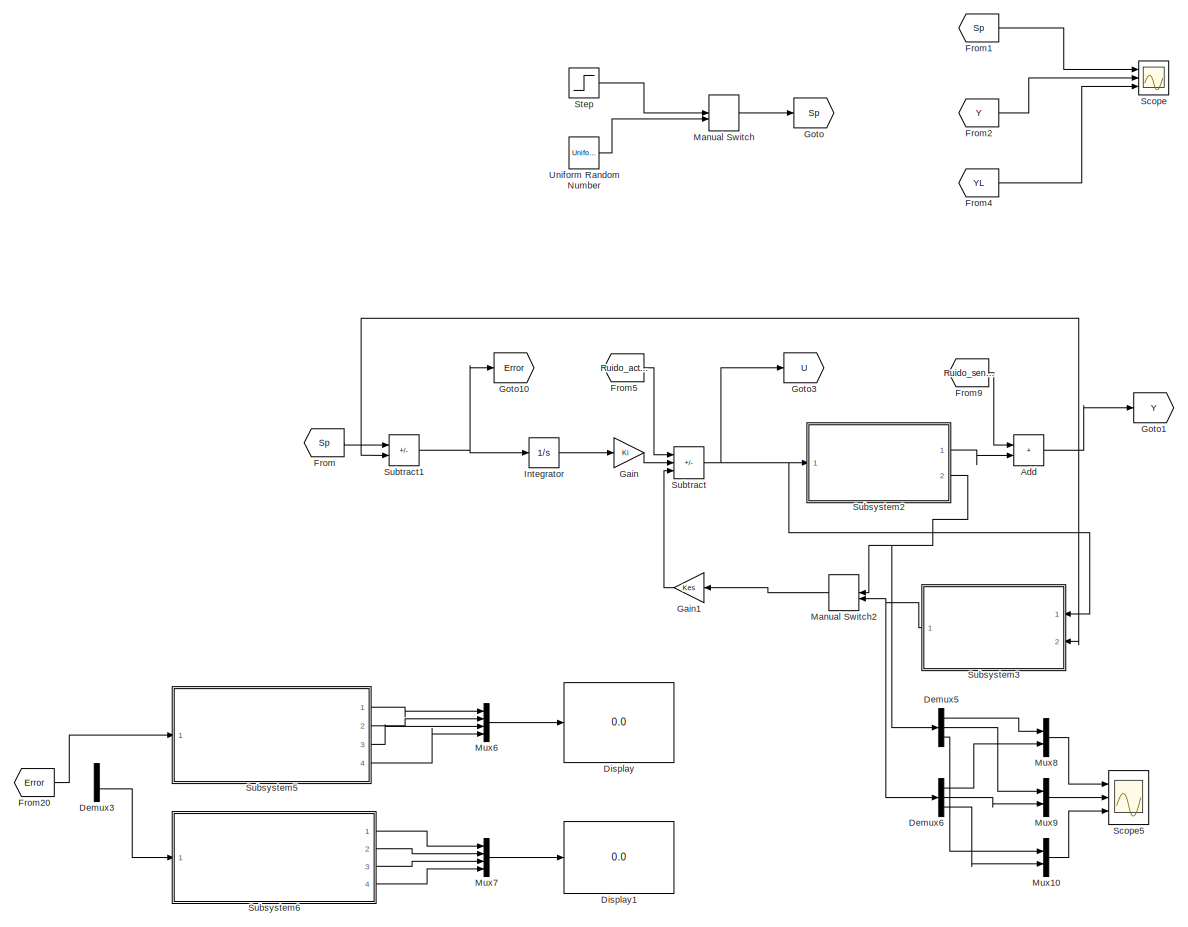
[diagram: Seg. Estados Desacop- - part 1/2, left side, full height]
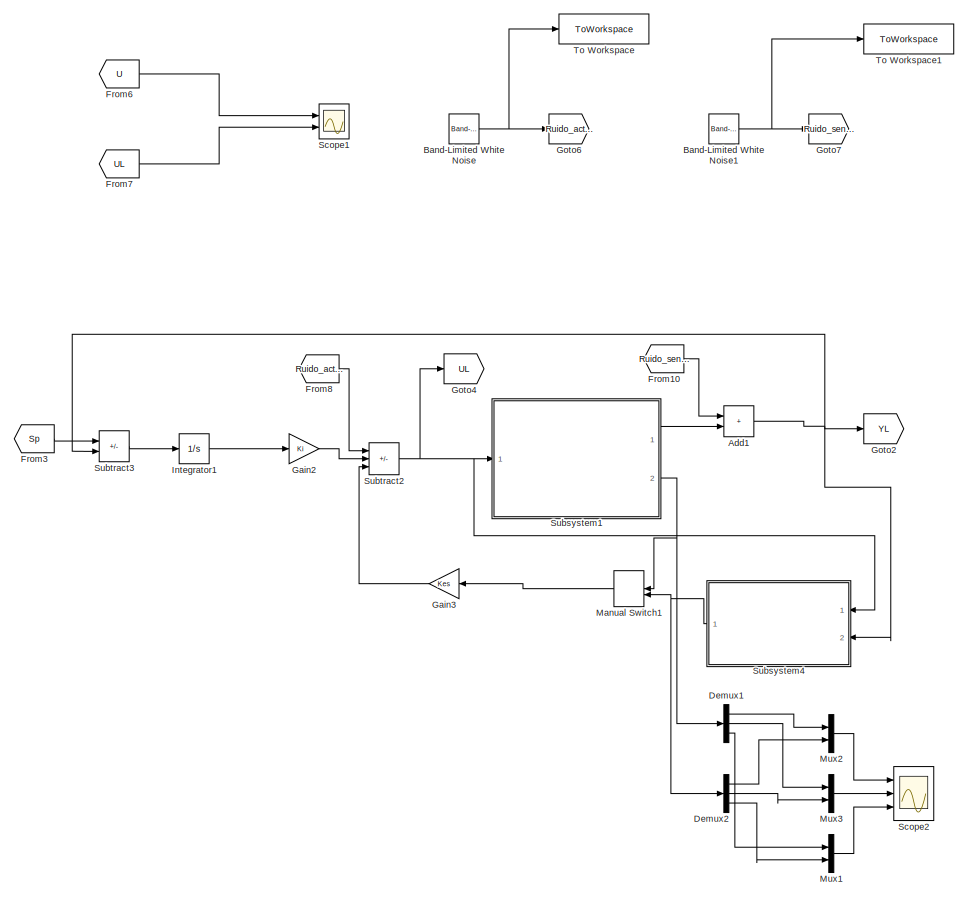
[diagram: Seg. Estados Desacop- - part 2/2, right side, full height]
BLOCK [SubSystem] Seg. Estados Desacop-
  Commented = on
  Ports = []
  RequestExecContextInheritance = off
BLOCK [Sum] Seg. Estados Desacop-/Add
  IconShape = rectangular
  Ports = [2, 1]
BLOCK [Sum] Seg. Estados Desacop-/Add1
  IconShape = rectangular
  Ports = [2, 1]
BLOCK [Reference] Seg. Estados Desacop-/Band-Limited White Noise  REF=simulink/Sources/Band-Limited
White Noise
  Ports = [0, 1]
  SourceBlock = simulink/Sources/Band-Limited\nWhite Noise
  SourceProductBaseCode = SL
  SourceType = Band-Limited White Noise.
BLOCK [Reference] Seg. Estados Desacop-/Band-Limited White Noise1  REF=simulink/Sources/Band-Limited
White Noise
  Ports = [0, 1]
  SourceBlock = simulink/Sources/Band-Limited\nWhite Noise
  SourceProductBaseCode = SL
  SourceType = Band-Limited White Noise.
BLOCK [Demux] Seg. Estados Desacop-/Demux1
  Outputs = 3
  Ports = [1, 3]
BLOCK [Demux] Seg. Estados Desacop-/Demux2
  Outputs = 3
  Ports = [1, 3]
BLOCK [Demux] Seg. Estados Desacop-/Demux3
  Commented = on
  Outputs = 2
  Ports = [1, 2]
BLOCK [Demux] Seg. Estados Desacop-/Demux5
  Outputs = 3
  Ports = [1, 3]
BLOCK [Demux] Seg. Estados Desacop-/Demux6
  Outputs = 3
  Ports = [1, 3]
BLOCK [Display] Seg. Estados Desacop-/Display
  Decimation = 1
  Ports = [1]
BLOCK [Display] Seg. Estados Desacop-/Display1
  Commented = on
  Decimation = 1
  Ports = [1]
BLOCK [From] Seg. Estados Desacop-/From
  GotoTag = Sp
BLOCK [From] Seg. Estados Desacop-/From1
  GotoTag = Sp
BLOCK [From] Seg. Estados Desacop-/From10
  GotoTag = Ruido_sensor
BLOCK [From] Seg. Estados Desacop-/From2
  GotoTag = Y
BLOCK [From] Seg. Estados Desacop-/From20
  GotoTag = Error
BLOCK [From] Seg. Estados Desacop-/From3
  GotoTag = Sp
BLOCK [From] Seg. Estados Desacop-/From4
  GotoTag = YL
BLOCK [From] Seg. Estados Desacop-/From5
  GotoTag = Ruido_actuador
BLOCK [From] Seg. Estados Desacop-/From6
  GotoTag = U
BLOCK [From] Seg. Estados Desacop-/From7
  GotoTag = UL
BLOCK [From] Seg. Estados Desacop-/From8
  GotoTag = Ruido_actuador
BLOCK [From] Seg. Estados Desacop-/From9
  GotoTag = Ruido_sensor
BLOCK [Gain] Seg. Estados Desacop-/Gain
  Gain = Ki
  Multiplication = Matrix(K*u)
BLOCK [Gain] Seg. Estados Desacop-/Gain1
  Gain = Kes
  Multiplication = Matrix(K*u)
  NameLocation = top
BLOCK [Gain] Seg. Estados Desacop-/Gain2
  Gain = Ki
  Multiplication = Matrix(K*u)
BLOCK [Gain] Seg. Estados Desacop-/Gain3
  Gain = Kes
  Multiplication = Matrix(K*u)
  NameLocation = top
BLOCK [Goto] Seg. Estados Desacop-/Goto
  GotoTag = Sp
BLOCK [Goto] Seg. Estados Desacop-/Goto1
  GotoTag = Y
BLOCK [Goto] Seg. Estados Desacop-/Goto10
  GotoTag = Error
BLOCK [Goto] Seg. Estados Desacop-/Goto2
  GotoTag = YL
BLOCK [Goto] Seg. Estados Desacop-/Goto3
  GotoTag = U
BLOCK [Goto] Seg. Estados Desacop-/Goto4
  GotoTag = UL
BLOCK [Goto] Seg. Estados Desacop-/Goto6
  GotoTag = Ruido_actuador
BLOCK [Goto] Seg. Estados Desacop-/Goto7
  GotoTag = Ruido_sensor
BLOCK [Integrator] Seg. Estados Desacop-/Integrator
  Ports = [1, 1]
BLOCK [Integrator] Seg. Estados Desacop-/Integrator1
  Ports = [1, 1]
BLOCK [ManualSwitch] Seg. Estados Desacop-/Manual Switch
  CurrentSetting = 0
BLOCK [ManualSwitch] Seg. Estados Desacop-/Manual Switch1
  CurrentSetting = 0
  NameLocation = top
BLOCK [ManualSwitch] Seg. Estados Desacop-/Manual Switch2
  CurrentSetting = 0
  NameLocation = top
BLOCK [Mux] Seg. Estados Desacop-/Mux1
  DisplayOption = bar
  Inputs = 2
  Ports = [2, 1]
BLOCK [Mux] Seg. Estados Desacop-/Mux10
  DisplayOption = bar
  Inputs = 2
  Ports = [2, 1]
BLOCK [Mux] Seg. Estados Desacop-/Mux2
  DisplayOption = bar
  Inputs = 2
  Ports = [2, 1]
BLOCK [Mux] Seg. Estados Desacop-/Mux3
  DisplayOption = bar
  Inputs = 2
  Ports = [2, 1]
BLOCK [Mux] Seg. Estados Desacop-/Mux6
  DisplayOption = bar
  Ports = [4, 1]
BLOCK [Mux] Seg. Estados Desacop-/Mux7
  Commented = on
  DisplayOption = bar
  Ports = [4, 1]
BLOCK [Mux] Seg. Estados Desacop-/Mux8
  DisplayOption = bar
  Inputs = 2
  Ports = [2, 1]
BLOCK [Mux] Seg. Estados Desacop-/Mux9
  DisplayOption = bar
  Inputs = 2
  Ports = [2, 1]
BLOCK [Scope] Seg. Estados Desacop-/Scope
  Floating = off
  NumInputPorts = 3
  Ports = [3]
  ScopeSpecificationString = Simulink.scopes.TimeScopeBlockCfg('CurrentConfiguration', extmgr.ConfigurationSet(extmgr.Configuration('Core','General UI',true,'FigureColor',[1 1 1]),extmgr.Configuration('Core','Source UI',true),extmgr.Configuration('Sources','WiredSimulink',true,'DataLoggingVariableName','ScopeData2'),extmgr.Configuration('Visuals','Time Domain',true,'SerializedDisplays',{struct('MinYLimReal','-1.2857','MaxYLim...<+2472ch>
BLOCK [Scope] Seg. Estados Desacop-/Scope1
  Floating = off
  NumInputPorts = 2
  Ports = [2]
  ScopeSpecificationString = Simulink.scopes.TimeScopeBlockCfg('CurrentConfiguration', extmgr.ConfigurationSet(extmgr.Configuration('Core','General UI',true,'FigureColor',[1 1 1]),extmgr.Configuration('Core','Source UI',true),extmgr.Configuration('Sources','WiredSimulink',true,'DataLoggingVariableName','ScopeData3'),extmgr.Configuration('Visuals','Time Domain',true,'SerializedDisplays',{struct('MinYLimReal','-49.85883','MaxYL...<+2472ch>
BLOCK [Scope] Seg. Estados Desacop-/Scope2
  Floating = off
  NumInputPorts = 3
  Ports = [3]
  ScopeSpecificationString = Simulink.scopes.TimeScopeBlockCfg('CurrentConfiguration', extmgr.ConfigurationSet(extmgr.Configuration('Core','General UI',true,'FigureColor',[1 1 1]),extmgr.Configuration('Core','Source UI',true),extmgr.Configuration('Sources','WiredSimulink',true,'DataLoggingVariableName','ScopeData5'),extmgr.Configuration('Visuals','Time Domain',true,'SerializedDisplays',{struct('MinYLimReal','-0.70061','MaxYLi...<+3904ch>
BLOCK [Scope] Seg. Estados Desacop-/Scope5
  Floating = off
  NumInputPorts = 3
  Ports = [3]
  ScopeSpecificationString = Simulink.scopes.TimeScopeBlockCfg('CurrentConfiguration', extmgr.ConfigurationSet(extmgr.Configuration('Core','General UI',true,'FigureColor',[1 1 1]),extmgr.Configuration('Core','Source UI',true),extmgr.Configuration('Sources','WiredSimulink',true,'DataLoggingVariableName','ScopeData4'),extmgr.Configuration('Visuals','Time Domain',true,'SerializedDisplays',{struct('MinYLimReal','-0.58489','MaxYLi...<+4080ch>
BLOCK [Step] Seg. Estados Desacop-/Step
  After = 0
  SampleTime = 0
  Time = 0
BLOCK [SubSystem] Seg. Estados Desacop-/Subsystem1
  Ports = [1, 2]
  RequestExecContextInheritance = off
BLOCK [Sum] Seg. Estados Desacop-/Subsystem1/Add
  IconShape = rectangular
  Ports = [2, 1]
BLOCK [Sum] Seg. Estados Desacop-/Subsystem1/Add1
  IconShape = rectangular
  Ports = [2, 1]
BLOCK [Outport] Seg. Estados Desacop-/Subsystem1/Est_L
  Port = 2
BLOCK [Gain] Seg. Estados Desacop-/Subsystem1/Gain
  Gain = CL
  Multiplication = Matrix(K*u)
BLOCK [Gain] Seg. Estados Desacop-/Subsystem1/Gain1
  Gain = AL
  Multiplication = Matrix(K*u)
  NameLocation = top
BLOCK [Gain] Seg. Estados Desacop-/Subsystem1/Gain2
  Gain = DL
  Multiplication = Matrix(K*u)
BLOCK [Gain] Seg. Estados Desacop-/Subsystem1/Gain3
  Gain = BL
  Multiplication = Matrix(K*u)
BLOCK [Inport] Seg. Estados Desacop-/Subsystem1/In1
BLOCK [Integrator] Seg. Estados Desacop-/Subsystem1/Integrator
  Ports = [1, 1]
BLOCK [Outport] Seg. Estados Desacop-/Subsystem1/YL
BLOCK [SubSystem] Seg. Estados Desacop-/Subsystem2
  Ports = [1, 2]
  RequestExecContextInheritance = off
BLOCK [Sum] Seg. Estados Desacop-/Subsystem2/Add
  IconShape = rectangular
  Ports = [2, 1]
BLOCK [Constant] Seg. Estados Desacop-/Subsystem2/Constant
  Value = [Ro,Lo,Kio, Kvo, Jmo, Jlo, Bmo, Blo, no, go, do, mo]
BLOCK [Constant] Seg. Estados Desacop-/Subsystem2/Constant1
  Value = Vin0
BLOCK [Constant] Seg. Estados Desacop-/Subsystem2/Constant2
  Value = [X10; X20;X30]
BLOCK [Outport] Seg. Estados Desacop-/Subsystem2/Est
  Port = 2
BLOCK [Gain] Seg. Estados Desacop-/Subsystem2/Gain1
  Gain = CL
  Multiplication = Matrix(K*u)
BLOCK [Inport] Seg. Estados Desacop-/Subsystem2/Input
BLOCK [Integrator] Seg. Estados Desacop-/Subsystem2/Integrator
  InitialCondition = [X10; X20;X30]
  Ports = [1, 1]
BLOCK [SubSystem] Seg. Estados Desacop-/Subsystem2/MATLAB Function
  ErrorFcn = Stateflow.Translate.translate
  PermitHierarchicalResolution = ExplicitOnly
  Ports = [3, 1]
  RequestExecContextInheritance = off
  SFBlockType = MATLAB Function
  TreatAsAtomicUnit = on
BLOCK [Demux] Seg. Estados Desacop-/Subsystem2/MATLAB Function/ Demux 
  Outputs = 1
  Ports = [1, 1]
BLOCK [S-Function] Seg. Estados Desacop-/Subsystem2/MATLAB Function/ SFunction 
  EnableBusSupport = on
  FunctionName = sf_sfun
  PortCounts = [3 2]
  Ports = [3, 2]
  SFcnIsStateOwnerBlock = off
  SFunctionDeploymentMode = off
  Tag = Stateflow S-Function 5
BLOCK [Terminator] Seg. Estados Desacop-/Subsystem2/MATLAB Function/ Terminator 
BLOCK [Inport] Seg. Estados Desacop-/Subsystem2/MATLAB Function/PWM
  Port = 2
BLOCK [Outport] Seg. Estados Desacop-/Subsystem2/MATLAB Function/dx
BLOCK [Inport] Seg. Estados Desacop-/Subsystem2/MATLAB Function/parametros
  Port = 3
BLOCK [Inport] Seg. Estados Desacop-/Subsystem2/MATLAB Function/x
BLOCK [Outport] Seg. Estados Desacop-/Subsystem2/Output
BLOCK [Sum] Seg. Estados Desacop-/Subsystem2/Subtract1
  IconShape = rectangular
  Inputs = +-
  Ports = [2, 1]
BLOCK [SubSystem] Seg. Estados Desacop-/Subsystem3
  NameLocation = top
  Ports = [2, 1]
  RequestExecContextInheritance = off
BLOCK [Sum] Seg. Estados Desacop-/Subsystem3/Add6
  IconShape = rectangular
  Ports = [2, 1]
BLOCK [Sum] Seg. Estados Desacop-/Subsystem3/Add7
  IconShape = rectangular
  Ports = [2, 1]
BLOCK [Sum] Seg. Estados Desacop-/Subsystem3/Add8
  IconShape = rectangular
  Ports = [2, 1]
BLOCK [Sum] Seg. Estados Desacop-/Subsystem3/Add9
  IconShape = rectangular
  Inputs = +-
  Ports = [2, 1]
BLOCK [Outport] Seg. Estados Desacop-/Subsystem3/Estados
  VectorParamsAs1DForOutWhenUnconnected = off
BLOCK [Gain] Seg. Estados Desacop-/Subsystem3/Gain10
  Gain = CL
  Multiplication = Matrix(K*u)
BLOCK [Gain] Seg. Estados Desacop-/Subsystem3/Gain11
  Gain = DL
  Multiplication = Matrix(K*u)
BLOCK [Gain] Seg. Estados Desacop-/Subsystem3/Gain13
  Gain = L
  Multiplication = Matrix(K*u)
  NameLocation = top
BLOCK [Gain] Seg. Estados Desacop-/Subsystem3/Gain8
  Gain = BL
  Multiplication = Matrix(K*u)
BLOCK [Gain] Seg. Estados Desacop-/Subsystem3/Gain9
  Gain = AL
  Multiplication = Matrix(K*u)
  NameLocation = top
BLOCK [Integrator] Seg. Estados Desacop-/Subsystem3/Integrator3
  Ports = [1, 1]
BLOCK [Inport] Seg. Estados Desacop-/Subsystem3/U
BLOCK [Inport] Seg. Estados Desacop-/Subsystem3/Y
  Port = 2
BLOCK [SubSystem] Seg. Estados Desacop-/Subsystem4
  NameLocation = top
  Ports = [2, 1]
  RequestExecContextInheritance = off
BLOCK [Sum] Seg. Estados Desacop-/Subsystem4/Add6
  IconShape = rectangular
  Ports = [2, 1]
BLOCK [Sum] Seg. Estados Desacop-/Subsystem4/Add7
  IconShape = rectangular
  Ports = [2, 1]
BLOCK [Sum] Seg. Estados Desacop-/Subsystem4/Add8
  IconShape = rectangular
  Ports = [2, 1]
BLOCK [Sum] Seg. Estados Desacop-/Subsystem4/Add9
  IconShape = rectangular
  Inputs = +-
  Ports = [2, 1]
BLOCK [Outport] Seg. Estados Desacop-/Subsystem4/Estados
  VectorParamsAs1DForOutWhenUnconnected = off
BLOCK [Gain] Seg. Estados Desacop-/Subsystem4/Gain10
  Gain = CL
  Multiplication = Matrix(K*u)
BLOCK [Gain] Seg. Estados Desacop-/Subsystem4/Gain11
  Gain = DL
  Multiplication = Matrix(K*u)
BLOCK [Gain] Seg. Estados Desacop-/Subsystem4/Gain13
  Gain = L
  Multiplication = Matrix(K*u)
  NameLocation = top
BLOCK [Gain] Seg. Estados Desacop-/Subsystem4/Gain8
  Gain = BL
  Multiplication = Matrix(K*u)
BLOCK [Gain] Seg. Estados Desacop-/Subsystem4/Gain9
  Gain = AL
  Multiplication = Matrix(K*u)
  NameLocation = top
BLOCK [Integrator] Seg. Estados Desacop-/Subsystem4/Integrator3
  Ports = [1, 1]
BLOCK [Inport] Seg. Estados Desacop-/Subsystem4/U
BLOCK [Inport] Seg. Estados Desacop-/Subsystem4/Y
  Port = 2
BLOCK [SubSystem] Seg. Estados Desacop-/Subsystem5
  Ports = [1, 4]
  RequestExecContextInheritance = off
BLOCK [Abs] Seg. Estados Desacop-/Subsystem5/Abs
  SaturateOnIntegerOverflow = off
BLOCK [Clock] Seg. Estados Desacop-/Subsystem5/Clock
  Decimation = 1
BLOCK [Clock] Seg. Estados Desacop-/Subsystem5/Clock1
  Decimation = 1
BLOCK [Outport] Seg. Estados Desacop-/Subsystem5/IAE
  VectorParamsAs1DForOutWhenUnconnected = off
BLOCK [Outport] Seg. Estados Desacop-/Subsystem5/ISE
  Port = 3
  VectorParamsAs1DForOutWhenUnconnected = off
BLOCK [Outport] Seg. Estados Desacop-/Subsystem5/ITAE
  Port = 2
  VectorParamsAs1DForOutWhenUnconnected = off
BLOCK [Outport] Seg. Estados Desacop-/Subsystem5/ITSE
  Port = 4
  VectorParamsAs1DForOutWhenUnconnected = off
BLOCK [Inport] Seg. Estados Desacop-/Subsystem5/In1
BLOCK [Integrator] Seg. Estados Desacop-/Subsystem5/Integrator3
  Ports = [1, 1]
BLOCK [Integrator] Seg. Estados Desacop-/Subsystem5/Integrator4
  Ports = [1, 1]
BLOCK [Integrator] Seg. Estados Desacop-/Subsystem5/Integrator5
  Ports = [1, 1]
BLOCK [Integrator] Seg. Estados Desacop-/Subsystem5/Integrator6
  Ports = [1, 1]
BLOCK [Math] Seg. Estados Desacop-/Subsystem5/Power
  Operator = magnitude^2
  Ports = [1, 1]
  SignedPower = on
BLOCK [Product] Seg. Estados Desacop-/Subsystem5/Product
  Ports = [2, 1]
BLOCK [Product] Seg. Estados Desacop-/Subsystem5/Product1
  Ports = [2, 1]
BLOCK [SubSystem] Seg. Estados Desacop-/Subsystem6
  Commented = on
  Ports = [1, 4]
  RequestExecContextInheritance = off
BLOCK [Abs] Seg. Estados Desacop-/Subsystem6/Abs
  SaturateOnIntegerOverflow = off
BLOCK [Clock] Seg. Estados Desacop-/Subsystem6/Clock
  Decimation = 1
BLOCK [Clock] Seg. Estados Desacop-/Subsystem6/Clock1
  Decimation = 1
BLOCK [Outport] Seg. Estados Desacop-/Subsystem6/IAE
  VectorParamsAs1DForOutWhenUnconnected = off
BLOCK [Outport] Seg. Estados Desacop-/Subsystem6/ISE
  Port = 3
  VectorParamsAs1DForOutWhenUnconnected = off
BLOCK [Outport] Seg. Estados Desacop-/Subsystem6/ITAE
  Port = 2
  VectorParamsAs1DForOutWhenUnconnected = off
BLOCK [Outport] Seg. Estados Desacop-/Subsystem6/ITSE
  Port = 4
  VectorParamsAs1DForOutWhenUnconnected = off
BLOCK [Inport] Seg. Estados Desacop-/Subsystem6/In1
BLOCK [Integrator] Seg. Estados Desacop-/Subsystem6/Integrator3
  Ports = [1, 1]
BLOCK [Integrator] Seg. Estados Desacop-/Subsystem6/Integrator4
  Ports = [1, 1]
BLOCK [Integrator] Seg. Estados Desacop-/Subsystem6/Integrator5
  Ports = [1, 1]
BLOCK [Integrator] Seg. Estados Desacop-/Subsystem6/Integrator6
  Ports = [1, 1]
BLOCK [Math] Seg. Estados Desacop-/Subsystem6/Power
  Operator = magnitude^2
  Ports = [1, 1]
  SignedPower = on
BLOCK [Product] Seg. Estados Desacop-/Subsystem6/Product
  Ports = [2, 1]
BLOCK [Product] Seg. Estados Desacop-/Subsystem6/Product1
  Ports = [2, 1]
BLOCK [Scope] Seg. Estados Desacop-/Subsystem6/Scope3
  Floating = off
  NumInputPorts = 4
  Ports = [4]
  ScopeSpecificationString = Simulink.scopes.TimeScopeBlockCfg('CurrentConfiguration', extmgr.ConfigurationSet(extmgr.Configuration('Core','General UI',true,'FigureColor',[1 1 1]),extmgr.Configuration('Core','Source UI',true),extmgr.Configuration('Sources','WiredSimulink',true,'DataLoggingVariableName','ScopeData4'),extmgr.Configuration('Visuals','Time Domain',true,'SerializedDisplays',{struct('MinYLimReal','-0.08686','MaxYLi...<+3629ch>
BLOCK [Sum] Seg. Estados Desacop-/Subtract
  IconShape = rectangular
  Inputs = ++-
  Ports = [3, 1]
BLOCK [Sum] Seg. Estados Desacop-/Subtract1
  IconShape = rectangular
  Inputs = +-
  Ports = [2, 1]
BLOCK [Sum] Seg. Estados Desacop-/Subtract2
  IconShape = rectangular
  Inputs = ++-
  Ports = [3, 1]
BLOCK [Sum] Seg. Estados Desacop-/Subtract3
  IconShape = rectangular
  Inputs = +-
  Ports = [2, 1]
BLOCK [ToWorkspace] Seg. Estados Desacop-/To Workspace
  FixptAsFi = on
  MaxDataPoints = inf
  Ports = [1]
  SampleTime = -1
  VariableName = Ruido_actuador
BLOCK [ToWorkspace] Seg. Estados Desacop-/To Workspace1
  FixptAsFi = on
  MaxDataPoints = inf
  Ports = [1]
  SampleTime = -1
  VariableName = Ruido_sensor
BLOCK [UniformRandomNumber] Seg. Estados Desacop-/Uniform Random Number
  Maximum = 60*(pi/180)
  Minimum = -60*(pi/180)
  SampleTime = 10
NET Control Estados_Discreto_Codigo/Add10:1 -> Control Estados_Discreto_Codigo/Goto3:1, Control Estados_Discreto_Codigo/MATLAB Function1:2
LINE Control Estados_Discreto_Codigo/Add1:1 -> Control Estados_Discreto_Codigo/Unit Delay3:1
LINE Control Estados_Discreto_Codigo/Add4:1 -> Control Estados_Discreto_Codigo/Add7:2
NET Control Estados_Discreto_Codigo/Add5:1 -> Control Estados_Discreto_Codigo/Gain2:1, Control Estados_Discreto_Codigo/Gain5:1, Control Estados_Discreto_Codigo/Goto9:1
NET Control Estados_Discreto_Codigo/Add7:1 -> Control Estados_Discreto_Codigo/Goto1:1, Control Estados_Discreto_Codigo/MATLAB Function2:2
NET Control Estados_Discreto_Codigo/Band-Limited White Noise1:1 -> Control Estados_Discreto_Codigo/Goto7:1, Control Estados_Discreto_Codigo/To Workspace1:1
NET Control Estados_Discreto_Codigo/Band-Limited White Noise:1 -> Control Estados_Discreto_Codigo/Goto6:1, Control Estados_Discreto_Codigo/To Workspace:1
LINE Control Estados_Discreto_Codigo/Demux1:1 -> Control Estados_Discreto_Codigo/Mux2:1
LINE Control Estados_Discreto_Codigo/Demux1:2 -> Control Estados_Discreto_Codigo/Mux3:1
LINE Control Estados_Discreto_Codigo/Demux1:3 -> Control Estados_Discreto_Codigo/Mux1:1
LINE Control Estados_Discreto_Codigo/Demux2:1 -> Control Estados_Discreto_Codigo/Mux2:2
LINE Control Estados_Discreto_Codigo/Demux2:2 -> Control Estados_Discreto_Codigo/Mux3:2
LINE Control Estados_Discreto_Codigo/Demux2:3 -> Control Estados_Discreto_Codigo/Mux1:2
LINE Control Estados_Discreto_Codigo/Demux5:1 -> Control Estados_Discreto_Codigo/Mux8:1
LINE Control Estados_Discreto_Codigo/Demux5:2 -> Control Estados_Discreto_Codigo/Mux9:1
LINE Control Estados_Discreto_Codigo/Demux5:3 -> Control Estados_Discreto_Codigo/Mux10:1
LINE Control Estados_Discreto_Codigo/Demux6:1 -> Control Estados_Discreto_Codigo/Mux8:2
LINE Control Estados_Discreto_Codigo/Demux6:2 -> Control Estados_Discreto_Codigo/Mux9:2
LINE Control Estados_Discreto_Codigo/Demux6:3 -> Control Estados_Discreto_Codigo/Mux10:2
LINE Control Estados_Discreto_Codigo/From Workspace1:1 -> Control Estados_Discreto_Codigo/Scope:4
LINE Control Estados_Discreto_Codigo/From Workspace2:1 -> Control Estados_Discreto_Codigo/Scope2:3
LINE Control Estados_Discreto_Codigo/From Workspace3:1 -> Control Estados_Discreto_Codigo/Scope3:1
LINE Control Estados_Discreto_Codigo/From Workspace4:1 -> Control Estados_Discreto_Codigo/Scope3:2
LINE Control Estados_Discreto_Codigo/From Workspace5:1 -> Control Estados_Discreto_Codigo/Scope3:3
LINE Control Estados_Discreto_Codigo/From Workspace:1 -> Control Estados_Discreto_Codigo/Manual Switch:1
LINE Control Estados_Discreto_Codigo/From14:1 -> Control Estados_Discreto_Codigo/Subtract:1
LINE Control Estados_Discreto_Codigo/From1:1 -> Control Estados_Discreto_Codigo/MATLAB Function2:1
LINE Control Estados_Discreto_Codigo/From2:1 -> Control Estados_Discreto_Codigo/Add5:1
LINE Control Estados_Discreto_Codigo/From3:1 -> Control Estados_Discreto_Codigo/Add7:1
LINE Control Estados_Discreto_Codigo/From4:1 -> Control Estados_Discreto_Codigo/Scope:1
LINE Control Estados_Discreto_Codigo/From5:1 -> Control Estados_Discreto_Codigo/Scope:2
LINE Control Estados_Discreto_Codigo/From6:1 -> Control Estados_Discreto_Codigo/Scope:3
LINE Control Estados_Discreto_Codigo/From7:1 -> Control Estados_Discreto_Codigo/Scope2:1
LINE Control Estados_Discreto_Codigo/From8:1 -> Control Estados_Discreto_Codigo/Scope2:2
LINE Control Estados_Discreto_Codigo/From9:1 -> Control Estados_Discreto_Codigo/Add10:1
LINE Control Estados_Discreto_Codigo/From:1 -> Control Estados_Discreto_Codigo/MATLAB Function1:1
LINE Control Estados_Discreto_Codigo/Gain2:1 -> Control Estados_Discreto_Codigo/Add1:1
LINE Control Estados_Discreto_Codigo/Gain3:1 -> Control Estados_Discreto_Codigo/Add1:2
LINE Control Estados_Discreto_Codigo/Gain4:1 -> Control Estados_Discreto_Codigo/Add4:2
LINE Control Estados_Discreto_Codigo/Gain5:1 -> Control Estados_Discreto_Codigo/Add4:1
LINE Control Estados_Discreto_Codigo/MATLAB Function1:1 -> Control Estados_Discreto_Codigo/Subtract:2
LINE Control Estados_Discreto_Codigo/MATLAB Function1:2 -> Control Estados_Discreto_Codigo/Unit Delay1:1
LINE Control Estados_Discreto_Codigo/MATLAB Function1:3 -> Control Estados_Discreto_Codigo/Demux6:1
LINE Control Estados_Discreto_Codigo/MATLAB Function2:1 -> Control Estados_Discreto_Codigo/Add5:2
LINE Control Estados_Discreto_Codigo/MATLAB Function2:2 -> Control Estados_Discreto_Codigo/Unit Delay2:1
LINE Control Estados_Discreto_Codigo/MATLAB Function2:3 -> Control Estados_Discreto_Codigo/Demux2:1
LINE Control Estados_Discreto_Codigo/Manual Switch:1 -> Control Estados_Discreto_Codigo/Goto:1
LINE Control Estados_Discreto_Codigo/Mux10:1 -> Control Estados_Discreto_Codigo/Scope5:3
LINE Control Estados_Discreto_Codigo/Mux1:1 -> Control Estados_Discreto_Codigo/Scope1:3
LINE Control Estados_Discreto_Codigo/Mux2:1 -> Control Estados_Discreto_Codigo/Scope1:1
LINE Control Estados_Discreto_Codigo/Mux3:1 -> Control Estados_Discreto_Codigo/Scope1:2
LINE Control Estados_Discreto_Codigo/Mux8:1 -> Control Estados_Discreto_Codigo/Scope5:1
LINE Control Estados_Discreto_Codigo/Mux9:1 -> Control Estados_Discreto_Codigo/Scope5:2
LINE Control Estados_Discreto_Codigo/Subsystem5/Add:1 -> Control Estados_Discreto_Codigo/Subsystem5/MATLAB Function:2
LINE Control Estados_Discreto_Codigo/Subsystem5/Constant1:1 -> Control Estados_Discreto_Codigo/Subsystem5/Add:1
LINE Control Estados_Discreto_Codigo/Subsystem5/Constant2:1 -> Control Estados_Discreto_Codigo/Subsystem5/Subtract1:2
LINE Control Estados_Discreto_Codigo/Subsystem5/Constant:1 -> Control Estados_Discreto_Codigo/Subsystem5/MATLAB Function:3
LINE Control Estados_Discreto_Codigo/Subsystem5/Gain1:1 -> Control Estados_Discreto_Codigo/Subsystem5/Output:1
LINE Control Estados_Discreto_Codigo/Subsystem5/Input:1 -> Control Estados_Discreto_Codigo/Subsystem5/Add:2
NET Control Estados_Discreto_Codigo/Subsystem5/Integrator:1 -> Control Estados_Discreto_Codigo/Subsystem5/MATLAB Function:1, Control Estados_Discreto_Codigo/Subsystem5/Subtract1:1
LINE Control Estados_Discreto_Codigo/Subsystem5/MATLAB Function:1 -> Control Estados_Discreto_Codigo/Subsystem5/Integrator:1
NET Control Estados_Discreto_Codigo/Subsystem5/Subtract1:1 -> Control Estados_Discreto_Codigo/Subsystem5/Est:1, Control Estados_Discreto_Codigo/Subsystem5/Gain1:1
LINE Control Estados_Discreto_Codigo/Subsystem5:1 -> Control Estados_Discreto_Codigo/Add10:2
LINE Control Estados_Discreto_Codigo/Subsystem5:2 -> Control Estados_Discreto_Codigo/Demux5:1
NET Control Estados_Discreto_Codigo/Subtract:1 -> Control Estados_Discreto_Codigo/Goto11:1, Control Estados_Discreto_Codigo/Subsystem5:1
LINE Control Estados_Discreto_Codigo/Uniform Random Number:1 -> Control Estados_Discreto_Codigo/Manual Switch:2
LINE Control Estados_Discreto_Codigo/Unit Delay1:1 -> Control Estados_Discreto_Codigo/MATLAB Function1:3
LINE Control Estados_Discreto_Codigo/Unit Delay2:1 -> Control Estados_Discreto_Codigo/MATLAB Function2:3
NET Control Estados_Discreto_Codigo/Unit Delay3:1 -> Control Estados_Discreto_Codigo/Demux1:1, Control Estados_Discreto_Codigo/Gain3:1, Control Estados_Discreto_Codigo/Gain4:1
NET Control Estados_Discreto_Desacoplado VER/Add10:1 -> Control Estados_Discreto_Desacoplado VER/Goto3:1, Control Estados_Discreto_Desacoplado VER/MATLAB Function1:2
LINE Control Estados_Discreto_Desacoplado VER/Add1:1 -> Control Estados_Discreto_Desacoplado VER/Unit Delay3:1
LINE Control Estados_Discreto_Desacoplado VER/Add2:1 -> Control Estados_Discreto_Desacoplado VER/Add9:1
LINE Control Estados_Discreto_Desacoplado VER/Add4:1 -> Control Estados_Discreto_Desacoplado VER/Add7:2
NET Control Estados_Discreto_Desacoplado VER/Add5:1 -> Control Estados_Discreto_Desacoplado VER/Gain2:1, Control Estados_Discreto_Desacoplado VER/Gain5:1, Control Estados_Discreto_Desacoplado VER/Goto9:1
NET Control Estados_Discreto_Desacoplado VER/Add7:1 -> Control Estados_Discreto_Desacoplado VER/Add2:2, Control Estados_Discreto_Desacoplado VER/Goto1:1
NET Control Estados_Discreto_Desacoplado VER/Add9:1 -> Control Estados_Discreto_Desacoplado VER/Gain6:1, Control Estados_Discreto_Desacoplado VER/Unit Delay2:1
NET Control Estados_Discreto_Desacoplado VER/Band-Limited White Noise1:1 -> Control Estados_Discreto_Desacoplado VER/Goto7:1, Control Estados_Discreto_Desacoplado VER/To Workspace1:1
NET Control Estados_Discreto_Desacoplado VER/Band-Limited White Noise:1 -> Control Estados_Discreto_Desacoplado VER/Goto6:1, Control Estados_Discreto_Desacoplado VER/To Workspace:1
LINE Control Estados_Discreto_Desacoplado VER/From14:1 -> Control Estados_Discreto_Desacoplado VER/Subtract:1
LINE Control Estados_Discreto_Desacoplado VER/From1:1 -> Control Estados_Discreto_Desacoplado VER/Add2:1
LINE Control Estados_Discreto_Desacoplado VER/From21:1 -> Control Estados_Discreto_Desacoplado VER/Scope2:1
LINE Control Estados_Discreto_Desacoplado VER/From22:1 -> Control Estados_Discreto_Desacoplado VER/Scope2:2
LINE Control Estados_Discreto_Desacoplado VER/From23:1 -> Control Estados_Discreto_Desacoplado VER/Scope2:3
LINE Control Estados_Discreto_Desacoplado VER/From24:1 -> Control Estados_Discreto_Desacoplado VER/Scope3:1
LINE Control Estados_Discreto_Desacoplado VER/From25:1 -> Control Estados_Discreto_Desacoplado VER/Scope3:2
LINE Control Estados_Discreto_Desacoplado VER/From2:1 -> Control Estados_Discreto_Desacoplado VER/Add5:1
LINE Control Estados_Discreto_Desacoplado VER/From3:1 -> Control Estados_Discreto_Desacoplado VER/Add7:1
LINE Control Estados_Discreto_Desacoplado VER/From9:1 -> Control Estados_Discreto_Desacoplado VER/Add10:1
LINE Control Estados_Discreto_Desacoplado VER/From:1 -> Control Estados_Discreto_Desacoplado VER/MATLAB Function1:1
LINE Control Estados_Discreto_Desacoplado VER/Gain2:1 -> Control Estados_Discreto_Desacoplado VER/Add1:1
LINE Control Estados_Discreto_Desacoplado VER/Gain3:1 -> Control Estados_Discreto_Desacoplado VER/Add1:2
LINE Control Estados_Discreto_Desacoplado VER/Gain4:1 -> Control Estados_Discreto_Desacoplado VER/Add4:2
LINE Control Estados_Discreto_Desacoplado VER/Gain5:1 -> Control Estados_Discreto_Desacoplado VER/Add4:1
LINE Control Estados_Discreto_Desacoplado VER/Gain6:1 -> Control Estados_Discreto_Desacoplado VER/Add5:2
LINE Control Estados_Discreto_Desacoplado VER/Gain7:1 -> Control Estados_Discreto_Desacoplado VER/Add5:3
LINE Control Estados_Discreto_Desacoplado VER/MATLAB Function1:1 -> Control Estados_Discreto_Desacoplado VER/Subtract:2
LINE Control Estados_Discreto_Desacoplado VER/MATLAB Function1:2 -> Control Estados_Discreto_Desacoplado VER/Unit Delay1:1
LINE Control Estados_Discreto_Desacoplado VER/Manual Switch:1 -> Control Estados_Discreto_Desacoplado VER/Goto2:1
LINE Control Estados_Discreto_Desacoplado VER/Step:1 -> Control Estados_Discreto_Desacoplado VER/Manual Switch:1
LINE Control Estados_Discreto_Desacoplado VER/Subsystem5/Add:1 -> Control Estados_Discreto_Desacoplado VER/Subsystem5/MATLAB Function:2
LINE Control Estados_Discreto_Desacoplado VER/Subsystem5/Constant1:1 -> Control Estados_Discreto_Desacoplado VER/Subsystem5/Add:1
LINE Control Estados_Discreto_Desacoplado VER/Subsystem5/Constant2:1 -> Control Estados_Discreto_Desacoplado VER/Subsystem5/Subtract1:2
LINE Control Estados_Discreto_Desacoplado VER/Subsystem5/Constant:1 -> Control Estados_Discreto_Desacoplado VER/Subsystem5/MATLAB Function:3
LINE Control Estados_Discreto_Desacoplado VER/Subsystem5/Gain1:1 -> Control Estados_Discreto_Desacoplado VER/Subsystem5/Output:1
LINE Control Estados_Discreto_Desacoplado VER/Subsystem5/Input:1 -> Control Estados_Discreto_Desacoplado VER/Subsystem5/Add:2
NET Control Estados_Discreto_Desacoplado VER/Subsystem5/Integrator:1 -> Control Estados_Discreto_Desacoplado VER/Subsystem5/MATLAB Function:1, Control Estados_Discreto_Desacoplado VER/Subsystem5/Subtract1:1
LINE Control Estados_Discreto_Desacoplado VER/Subsystem5/MATLAB Function:1 -> Control Estados_Discreto_Desacoplado VER/Subsystem5/Integrator:1
NET Control Estados_Discreto_Desacoplado VER/Subsystem5/Subtract1:1 -> Control Estados_Discreto_Desacoplado VER/Subsystem5/Est:1, Control Estados_Discreto_Desacoplado VER/Subsystem5/Gain1:1
LINE Control Estados_Discreto_Desacoplado VER/Subsystem5:1 -> Control Estados_Discreto_Desacoplado VER/Add10:2
LINE Control Estados_Discreto_Desacoplado VER/Subsystem5:2 -> Control Estados_Discreto_Desacoplado VER/MATLAB Function1:4
NET Control Estados_Discreto_Desacoplado VER/Subtract:1 -> Control Estados_Discreto_Desacoplado VER/Goto11:1, Control Estados_Discreto_Desacoplado VER/Subsystem5:1
LINE Control Estados_Discreto_Desacoplado VER/Uniform Random Number:1 -> Control Estados_Discreto_Desacoplado VER/Manual Switch:2
LINE Control Estados_Discreto_Desacoplado VER/Unit Delay1:1 -> Control Estados_Discreto_Desacoplado VER/MATLAB Function1:3
LINE Control Estados_Discreto_Desacoplado VER/Unit Delay2:1 -> Control Estados_Discreto_Desacoplado VER/Add9:2
NET Control Estados_Discreto_Desacoplado VER/Unit Delay3:1 -> Control Estados_Discreto_Desacoplado VER/Gain3:1, Control Estados_Discreto_Desacoplado VER/Gain4:1, Control Estados_Discreto_Desacoplado VER/Gain7:1
NET Seg. Estados 2DOF Discreto/Add1:1 -> Seg. Estados 2DOF Discreto/Goto2:1, Seg. Estados 2DOF Discreto/MATLAB Function1:2, Seg. Estados 2DOF Discreto/Mux1:2
NET Seg. Estados 2DOF Discreto/Add:1 -> Seg. Estados 2DOF Discreto/Goto1:1, Seg. Estados 2DOF Discreto/MATLAB Function2:2, Seg. Estados 2DOF Discreto/Mux:2
NET Seg. Estados 2DOF Discreto/Band-Limited White Noise1:1 -> Seg. Estados 2DOF Discreto/Goto7:1, Seg. Estados 2DOF Discreto/To Workspace1:1
NET Seg. Estados 2DOF Discreto/Band-Limited White Noise:1 -> Seg. Estados 2DOF Discreto/Goto6:1, Seg. Estados 2DOF Discreto/To Workspace:1
LINE Seg. Estados 2DOF Discreto/Discrete State-Space1:1 -> Seg. Estados 2DOF Discreto/Scope3:2
LINE Seg. Estados 2DOF Discreto/Discrete State-Space:1 -> Seg. Estados 2DOF Discreto/Scope2:2
LINE Seg. Estados 2DOF Discreto/From Workspace1:1 -> Seg. Estados 2DOF Discreto/Scope:4
LINE Seg. Estados 2DOF Discreto/From Workspace2:1 -> Seg. Estados 2DOF Discreto/Scope1:3
LINE Seg. Estados 2DOF Discreto/From Workspace:1 -> Seg. Estados 2DOF Discreto/Manual Switch:1
LINE Seg. Estados 2DOF Discreto/From10:1 -> Seg. Estados 2DOF Discreto/Add1:1
LINE Seg. Estados 2DOF Discreto/From1:1 -> Seg. Estados 2DOF Discreto/Scope:1
LINE Seg. Estados 2DOF Discreto/From2:1 -> Seg. Estados 2DOF Discreto/Scope:2
NET Seg. Estados 2DOF Discreto/From3:1 -> Seg. Estados 2DOF Discreto/MATLAB Function1:1, Seg. Estados 2DOF Discreto/Mux1:1
LINE Seg. Estados 2DOF Discreto/From4:1 -> Seg. Estados 2DOF Discreto/Scope:3
LINE Seg. Estados 2DOF Discreto/From5:1 -> Seg. Estados 2DOF Discreto/Subtract:1
LINE Seg. Estados 2DOF Discreto/From6:1 -> Seg. Estados 2DOF Discreto/Scope1:1
LINE Seg. Estados 2DOF Discreto/From7:1 -> Seg. Estados 2DOF Discreto/Scope1:2
LINE Seg. Estados 2DOF Discreto/From8:1 -> Seg. Estados 2DOF Discreto/Subtract1:1
LINE Seg. Estados 2DOF Discreto/From9:1 -> Seg. Estados 2DOF Discreto/Add:1
NET Seg. Estados 2DOF Discreto/From:1 -> Seg. Estados 2DOF Discreto/MATLAB Function2:1, Seg. Estados 2DOF Discreto/Mux:1
LINE Seg. Estados 2DOF Discreto/MATLAB Function1:1 -> Seg. Estados 2DOF Discreto/Scope3:3
LINE Seg. Estados 2DOF Discreto/MATLAB Function1:2 -> Seg. Estados 2DOF Discreto/Unit Delay1:1
NET Seg. Estados 2DOF Discreto/MATLAB Function2:1 -> Seg. Estados 2DOF Discreto/Scope2:3, Seg. Estados 2DOF Discreto/Subtract:2
LINE Seg. Estados 2DOF Discreto/MATLAB Function2:2 -> Seg. Estados 2DOF Discreto/Unit Delay2:1
LINE Seg. Estados 2DOF Discreto/Manual Switch:1 -> Seg. Estados 2DOF Discreto/Goto:1
NET Seg. Estados 2DOF Discreto/Mux1:1 -> Seg. Estados 2DOF Discreto/Discrete State-Space1:1, Seg. Estados 2DOF Discreto/State-Space2:1
NET Seg. Estados 2DOF Discreto/Mux:1 -> Seg. Estados 2DOF Discreto/Discrete State-Space:1, Seg. Estados 2DOF Discreto/State-Space1:1
LINE Seg. Estados 2DOF Discreto/State-Space1:1 -> Seg. Estados 2DOF Discreto/Scope2:1
NET Seg. Estados 2DOF Discreto/State-Space2:1 -> Seg. Estados 2DOF Discreto/Scope3:1, Seg. Estados 2DOF Discreto/Subtract1:2
LINE Seg. Estados 2DOF Discreto/Subsystem1/Add1:1 -> Seg. Estados 2DOF Discreto/Subsystem1/Integrator:1
LINE Seg. Estados 2DOF Discreto/Subsystem1/Add:1 -> Seg. Estados 2DOF Discreto/Subsystem1/YL:1
LINE Seg. Estados 2DOF Discreto/Subsystem1/Gain1:1 -> Seg. Estados 2DOF Discreto/Subsystem1/Add1:2
LINE Seg. Estados 2DOF Discreto/Subsystem1/Gain2:1 -> Seg. Estados 2DOF Discreto/Subsystem1/Add:1
LINE Seg. Estados 2DOF Discreto/Subsystem1/Gain3:1 -> Seg. Estados 2DOF Discreto/Subsystem1/Add1:1
LINE Seg. Estados 2DOF Discreto/Subsystem1/Gain:1 -> Seg. Estados 2DOF Discreto/Subsystem1/Add:2
NET Seg. Estados 2DOF Discreto/Subsystem1/In1:1 -> Seg. Estados 2DOF Discreto/Subsystem1/Gain2:1, Seg. Estados 2DOF Discreto/Subsystem1/Gain3:1
NET Seg. Estados 2DOF Discreto/Subsystem1/Integrator:1 -> Seg. Estados 2DOF Discreto/Subsystem1/Est_L:1, Seg. Estados 2DOF Discreto/Subsystem1/Gain1:1, Seg. Estados 2DOF Discreto/Subsystem1/Gain:1
LINE Seg. Estados 2DOF Discreto/Subsystem1:1 -> Seg. Estados 2DOF Discreto/Add1:2
LINE Seg. Estados 2DOF Discreto/Subsystem1:2 -> Seg. Estados 2DOF Discreto/Terminator1:1
LINE Seg. Estados 2DOF Discreto/Subsystem2/Add:1 -> Seg. Estados 2DOF Discreto/Subsystem2/MATLAB Function:2
LINE Seg. Estados 2DOF Discreto/Subsystem2/Constant1:1 -> Seg. Estados 2DOF Discreto/Subsystem2/Add:1
LINE Seg. Estados 2DOF Discreto/Subsystem2/Constant2:1 -> Seg. Estados 2DOF Discreto/Subsystem2/Subtract1:2
LINE Seg. Estados 2DOF Discreto/Subsystem2/Constant:1 -> Seg. Estados 2DOF Discreto/Subsystem2/MATLAB Function:3
LINE Seg. Estados 2DOF Discreto/Subsystem2/Gain1:1 -> Seg. Estados 2DOF Discreto/Subsystem2/Output:1
LINE Seg. Estados 2DOF Discreto/Subsystem2/Input:1 -> Seg. Estados 2DOF Discreto/Subsystem2/Add:2
NET Seg. Estados 2DOF Discreto/Subsystem2/Integrator:1 -> Seg. Estados 2DOF Discreto/Subsystem2/MATLAB Function:1, Seg. Estados 2DOF Discreto/Subsystem2/Subtract1:1
LINE Seg. Estados 2DOF Discreto/Subsystem2/MATLAB Function:1 -> Seg. Estados 2DOF Discreto/Subsystem2/Integrator:1
NET Seg. Estados 2DOF Discreto/Subsystem2/Subtract1:1 -> Seg. Estados 2DOF Discreto/Subsystem2/Est:1, Seg. Estados 2DOF Discreto/Subsystem2/Gain1:1
LINE Seg. Estados 2DOF Discreto/Subsystem2:1 -> Seg. Estados 2DOF Discreto/Add:2
LINE Seg. Estados 2DOF Discreto/Subsystem2:2 -> Seg. Estados 2DOF Discreto/Terminator:1
NET Seg. Estados 2DOF Discreto/Subtract1:1 -> Seg. Estados 2DOF Discreto/Goto4:1, Seg. Estados 2DOF Discreto/Subsystem1:1
NET Seg. Estados 2DOF Discreto/Subtract:1 -> Seg. Estados 2DOF Discreto/Goto3:1, Seg. Estados 2DOF Discreto/Subsystem2:1
LINE Seg. Estados 2DOF Discreto/Uniform Random Number:1 -> Seg. Estados 2DOF Discreto/Manual Switch:2
LINE Seg. Estados 2DOF Discreto/Unit Delay1:1 -> Seg. Estados 2DOF Discreto/MATLAB Function1:3
LINE Seg. Estados 2DOF Discreto/Unit Delay2:1 -> Seg. Estados 2DOF Discreto/MATLAB Function2:3
NET Seg. Estados Desacop-/Add1:1 -> Seg. Estados Desacop-/Goto2:1, Seg. Estados Desacop-/Subsystem4:2, Seg. Estados Desacop-/Subtract3:2
NET Seg. Estados Desacop-/Add:1 -> Seg. Estados Desacop-/Goto1:1, Seg. Estados Desacop-/Subsystem3:2, Seg. Estados Desacop-/Subtract1:2
NET Seg. Estados Desacop-/Band-Limited White Noise1:1 -> Seg. Estados Desacop-/Goto7:1, Seg. Estados Desacop-/To Workspace1:1
NET Seg. Estados Desacop-/Band-Limited White Noise:1 -> Seg. Estados Desacop-/Goto6:1, Seg. Estados Desacop-/To Workspace:1
LINE Seg. Estados Desacop-/Demux1:1 -> Seg. Estados Desacop-/Mux2:1
LINE Seg. Estados Desacop-/Demux1:2 -> Seg. Estados Desacop-/Mux3:1
LINE Seg. Estados Desacop-/Demux1:3 -> Seg. Estados Desacop-/Mux1:1
LINE Seg. Estados Desacop-/Demux2:1 -> Seg. Estados Desacop-/Mux2:2
LINE Seg. Estados Desacop-/Demux2:2 -> Seg. Estados Desacop-/Mux3:2
LINE Seg. Estados Desacop-/Demux2:3 -> Seg. Estados Desacop-/Mux1:2
LINE Seg. Estados Desacop-/Demux3:2 -> Seg. Estados Desacop-/Subsystem6:1
LINE Seg. Estados Desacop-/Demux5:1 -> Seg. Estados Desacop-/Mux8:1
LINE Seg. Estados Desacop-/Demux5:2 -> Seg. Estados Desacop-/Mux9:1
LINE Seg. Estados Desacop-/Demux5:3 -> Seg. Estados Desacop-/Mux10:1
LINE Seg. Estados Desacop-/Demux6:1 -> Seg. Estados Desacop-/Mux8:2
LINE Seg. Estados Desacop-/Demux6:2 -> Seg. Estados Desacop-/Mux9:2
LINE Seg. Estados Desacop-/Demux6:3 -> Seg. Estados Desacop-/Mux10:2
LINE Seg. Estados Desacop-/From10:1 -> Seg. Estados Desacop-/Add1:1
LINE Seg. Estados Desacop-/From1:1 -> Seg. Estados Desacop-/Scope:1
LINE Seg. Estados Desacop-/From20:1 -> Seg. Estados Desacop-/Subsystem5:1
LINE Seg. Estados Desacop-/From2:1 -> Seg. Estados Desacop-/Scope:2
LINE Seg. Estados Desacop-/From3:1 -> Seg. Estados Desacop-/Subtract3:1
LINE Seg. Estados Desacop-/From4:1 -> Seg. Estados Desacop-/Scope:3
LINE Seg. Estados Desacop-/From5:1 -> Seg. Estados Desacop-/Subtract:1
LINE Seg. Estados Desacop-/From6:1 -> Seg. Estados Desacop-/Scope1:1
LINE Seg. Estados Desacop-/From7:1 -> Seg. Estados Desacop-/Scope1:2
LINE Seg. Estados Desacop-/From8:1 -> Seg. Estados Desacop-/Subtract2:1
LINE Seg. Estados Desacop-/From9:1 -> Seg. Estados Desacop-/Add:1
LINE Seg. Estados Desacop-/From:1 -> Seg. Estados Desacop-/Subtract1:1
LINE Seg. Estados Desacop-/Gain1:1 -> Seg. Estados Desacop-/Subtract:3
LINE Seg. Estados Desacop-/Gain2:1 -> Seg. Estados Desacop-/Subtract2:2
LINE Seg. Estados Desacop-/Gain3:1 -> Seg. Estados Desacop-/Subtract2:3
LINE Seg. Estados Desacop-/Gain:1 -> Seg. Estados Desacop-/Subtract:2
LINE Seg. Estados Desacop-/Integrator1:1 -> Seg. Estados Desacop-/Gain2:1
LINE Seg. Estados Desacop-/Integrator:1 -> Seg. Estados Desacop-/Gain:1
LINE Seg. Estados Desacop-/Manual Switch1:1 -> Seg. Estados Desacop-/Gain3:1
LINE Seg. Estados Desacop-/Manual Switch2:1 -> Seg. Estados Desacop-/Gain1:1
LINE Seg. Estados Desacop-/Manual Switch:1 -> Seg. Estados Desacop-/Goto:1
LINE Seg. Estados Desacop-/Mux10:1 -> Seg. Estados Desacop-/Scope5:3
LINE Seg. Estados Desacop-/Mux1:1 -> Seg. Estados Desacop-/Scope2:3
LINE Seg. Estados Desacop-/Mux2:1 -> Seg. Estados Desacop-/Scope2:1
LINE Seg. Estados Desacop-/Mux3:1 -> Seg. Estados Desacop-/Scope2:2
LINE Seg. Estados Desacop-/Mux6:1 -> Seg. Estados Desacop-/Display:1
LINE Seg. Estados Desacop-/Mux7:1 -> Seg. Estados Desacop-/Display1:1
LINE Seg. Estados Desacop-/Mux8:1 -> Seg. Estados Desacop-/Scope5:1
LINE Seg. Estados Desacop-/Mux9:1 -> Seg. Estados Desacop-/Scope5:2
LINE Seg. Estados Desacop-/Step:1 -> Seg. Estados Desacop-/Manual Switch:1
LINE Seg. Estados Desacop-/Subsystem1/Add1:1 -> Seg. Estados Desacop-/Subsystem1/Integrator:1
LINE Seg. Estados Desacop-/Subsystem1/Add:1 -> Seg. Estados Desacop-/Subsystem1/YL:1
LINE Seg. Estados Desacop-/Subsystem1/Gain1:1 -> Seg. Estados Desacop-/Subsystem1/Add1:2
LINE Seg. Estados Desacop-/Subsystem1/Gain2:1 -> Seg. Estados Desacop-/Subsystem1/Add:1
LINE Seg. Estados Desacop-/Subsystem1/Gain3:1 -> Seg. Estados Desacop-/Subsystem1/Add1:1
LINE Seg. Estados Desacop-/Subsystem1/Gain:1 -> Seg. Estados Desacop-/Subsystem1/Add:2
NET Seg. Estados Desacop-/Subsystem1/In1:1 -> Seg. Estados Desacop-/Subsystem1/Gain2:1, Seg. Estados Desacop-/Subsystem1/Gain3:1
NET Seg. Estados Desacop-/Subsystem1/Integrator:1 -> Seg. Estados Desacop-/Subsystem1/Est_L:1, Seg. Estados Desacop-/Subsystem1/Gain1:1, Seg. Estados Desacop-/Subsystem1/Gain:1
LINE Seg. Estados Desacop-/Subsystem1:1 -> Seg. Estados Desacop-/Add1:2
NET Seg. Estados Desacop-/Subsystem1:2 -> Seg. Estados Desacop-/Demux1:1, Seg. Estados Desacop-/Manual Switch1:1
LINE Seg. Estados Desacop-/Subsystem2/Add:1 -> Seg. Estados Desacop-/Subsystem2/MATLAB Function:2
LINE Seg. Estados Desacop-/Subsystem2/Constant1:1 -> Seg. Estados Desacop-/Subsystem2/Add:1
LINE Seg. Estados Desacop-/Subsystem2/Constant2:1 -> Seg. Estados Desacop-/Subsystem2/Subtract1:2
LINE Seg. Estados Desacop-/Subsystem2/Constant:1 -> Seg. Estados Desacop-/Subsystem2/MATLAB Function:3
LINE Seg. Estados Desacop-/Subsystem2/Gain1:1 -> Seg. Estados Desacop-/Subsystem2/Output:1
LINE Seg. Estados Desacop-/Subsystem2/Input:1 -> Seg. Estados Desacop-/Subsystem2/Add:2
NET Seg. Estados Desacop-/Subsystem2/Integrator:1 -> Seg. Estados Desacop-/Subsystem2/MATLAB Function:1, Seg. Estados Desacop-/Subsystem2/Subtract1:1
LINE Seg. Estados Desacop-/Subsystem2/MATLAB Function:1 -> Seg. Estados Desacop-/Subsystem2/Integrator:1
NET Seg. Estados Desacop-/Subsystem2/Subtract1:1 -> Seg. Estados Desacop-/Subsystem2/Est:1, Seg. Estados Desacop-/Subsystem2/Gain1:1
LINE Seg. Estados Desacop-/Subsystem2:1 -> Seg. Estados Desacop-/Add:2
NET Seg. Estados Desacop-/Subsystem2:2 -> Seg. Estados Desacop-/Demux5:1, Seg. Estados Desacop-/Manual Switch2:1
LINE Seg. Estados Desacop-/Subsystem3/Add6:1 -> Seg. Estados Desacop-/Subsystem3/Integrator3:1
LINE Seg. Estados Desacop-/Subsystem3/Add7:1 -> Seg. Estados Desacop-/Subsystem3/Add9:2
LINE Seg. Estados Desacop-/Subsystem3/Add8:1 -> Seg. Estados Desacop-/Subsystem3/Add6:1
LINE Seg. Estados Desacop-/Subsystem3/Add9:1 -> Seg. Estados Desacop-/Subsystem3/Gain13:1
LINE Seg. Estados Desacop-/Subsystem3/Gain10:1 -> Seg. Estados Desacop-/Subsystem3/Add7:2
LINE Seg. Estados Desacop-/Subsystem3/Gain11:1 -> Seg. Estados Desacop-/Subsystem3/Add7:1
LINE Seg. Estados Desacop-/Subsystem3/Gain13:1 -> Seg. Estados Desacop-/Subsystem3/Add8:2
LINE Seg. Estados Desacop-/Subsystem3/Gain8:1 -> Seg. Estados Desacop-/Subsystem3/Add8:1
LINE Seg. Estados Desacop-/Subsystem3/Gain9:1 -> Seg. Estados Desacop-/Subsystem3/Add6:2
NET Seg. Estados Desacop-/Subsystem3/Integrator3:1 -> Seg. Estados Desacop-/Subsystem3/Estados:1, Seg. Estados Desacop-/Subsystem3/Gain10:1, Seg. Estados Desacop-/Subsystem3/Gain9:1
NET Seg. Estados Desacop-/Subsystem3/U:1 -> Seg. Estados Desacop-/Subsystem3/Gain11:1, Seg. Estados Desacop-/Subsystem3/Gain8:1
LINE Seg. Estados Desacop-/Subsystem3/Y:1 -> Seg. Estados Desacop-/Subsystem3/Add9:1
NET Seg. Estados Desacop-/Subsystem3:1 -> Seg. Estados Desacop-/Demux6:1, Seg. Estados Desacop-/Manual Switch2:2
LINE Seg. Estados Desacop-/Subsystem4/Add6:1 -> Seg. Estados Desacop-/Subsystem4/Integrator3:1
LINE Seg. Estados Desacop-/Subsystem4/Add7:1 -> Seg. Estados Desacop-/Subsystem4/Add9:2
LINE Seg. Estados Desacop-/Subsystem4/Add8:1 -> Seg. Estados Desacop-/Subsystem4/Add6:1
LINE Seg. Estados Desacop-/Subsystem4/Add9:1 -> Seg. Estados Desacop-/Subsystem4/Gain13:1
LINE Seg. Estados Desacop-/Subsystem4/Gain10:1 -> Seg. Estados Desacop-/Subsystem4/Add7:2
LINE Seg. Estados Desacop-/Subsystem4/Gain11:1 -> Seg. Estados Desacop-/Subsystem4/Add7:1
LINE Seg. Estados Desacop-/Subsystem4/Gain13:1 -> Seg. Estados Desacop-/Subsystem4/Add8:2
LINE Seg. Estados Desacop-/Subsystem4/Gain8:1 -> Seg. Estados Desacop-/Subsystem4/Add8:1
LINE Seg. Estados Desacop-/Subsystem4/Gain9:1 -> Seg. Estados Desacop-/Subsystem4/Add6:2
NET Seg. Estados Desacop-/Subsystem4/Integrator3:1 -> Seg. Estados Desacop-/Subsystem4/Estados:1, Seg. Estados Desacop-/Subsystem4/Gain10:1, Seg. Estados Desacop-/Subsystem4/Gain9:1
NET Seg. Estados Desacop-/Subsystem4/U:1 -> Seg. Estados Desacop-/Subsystem4/Gain11:1, Seg. Estados Desacop-/Subsystem4/Gain8:1
LINE Seg. Estados Desacop-/Subsystem4/Y:1 -> Seg. Estados Desacop-/Subsystem4/Add9:1
NET Seg. Estados Desacop-/Subsystem4:1 -> Seg. Estados Desacop-/Demux2:1, Seg. Estados Desacop-/Manual Switch1:2
NET Seg. Estados Desacop-/Subsystem5/Abs:1 -> Seg. Estados Desacop-/Subsystem5/Integrator3:1, Seg. Estados Desacop-/Subsystem5/Product:1
LINE Seg. Estados Desacop-/Subsystem5/Clock1:1 -> Seg. Estados Desacop-/Subsystem5/Product1:2
LINE Seg. Estados Desacop-/Subsystem5/Clock:1 -> Seg. Estados Desacop-/Subsystem5/Product:2
NET Seg. Estados Desacop-/Subsystem5/In1:1 -> Seg. Estados Desacop-/Subsystem5/Abs:1, Seg. Estados Desacop-/Subsystem5/Power:1
LINE Seg. Estados Desacop-/Subsystem5/Integrator3:1 -> Seg. Estados Desacop-/Subsystem5/IAE:1
LINE Seg. Estados Desacop-/Subsystem5/Integrator4:1 -> Seg. Estados Desacop-/Subsystem5/ITAE:1
LINE Seg. Estados Desacop-/Subsystem5/Integrator5:1 -> Seg. Estados Desacop-/Subsystem5/ISE:1
LINE Seg. Estados Desacop-/Subsystem5/Integrator6:1 -> Seg. Estados Desacop-/Subsystem5/ITSE:1
NET Seg. Estados Desacop-/Subsystem5/Power:1 -> Seg. Estados Desacop-/Subsystem5/Integrator5:1, Seg. Estados Desacop-/Subsystem5/Product1:1
LINE Seg. Estados Desacop-/Subsystem5/Product1:1 -> Seg. Estados Desacop-/Subsystem5/Integrator6:1
LINE Seg. Estados Desacop-/Subsystem5/Product:1 -> Seg. Estados Desacop-/Subsystem5/Integrator4:1
LINE Seg. Estados Desacop-/Subsystem5:1 -> Seg. Estados Desacop-/Mux6:1
LINE Seg. Estados Desacop-/Subsystem5:2 -> Seg. Estados Desacop-/Mux6:2
LINE Seg. Estados Desacop-/Subsystem5:3 -> Seg. Estados Desacop-/Mux6:3
LINE Seg. Estados Desacop-/Subsystem5:4 -> Seg. Estados Desacop-/Mux6:4
NET Seg. Estados Desacop-/Subsystem6/Abs:1 -> Seg. Estados Desacop-/Subsystem6/Integrator3:1, Seg. Estados Desacop-/Subsystem6/Product:1, Seg. Estados Desacop-/Subsystem6/Scope3:1
LINE Seg. Estados Desacop-/Subsystem6/Clock1:1 -> Seg. Estados Desacop-/Subsystem6/Product1:2
LINE Seg. Estados Desacop-/Subsystem6/Clock:1 -> Seg. Estados Desacop-/Subsystem6/Product:2
NET Seg. Estados Desacop-/Subsystem6/In1:1 -> Seg. Estados Desacop-/Subsystem6/Abs:1, Seg. Estados Desacop-/Subsystem6/Power:1
LINE Seg. Estados Desacop-/Subsystem6/Integrator3:1 -> Seg. Estados Desacop-/Subsystem6/IAE:1
LINE Seg. Estados Desacop-/Subsystem6/Integrator4:1 -> Seg. Estados Desacop-/Subsystem6/ITAE:1
LINE Seg. Estados Desacop-/Subsystem6/Integrator5:1 -> Seg. Estados Desacop-/Subsystem6/ISE:1
LINE Seg. Estados Desacop-/Subsystem6/Integrator6:1 -> Seg. Estados Desacop-/Subsystem6/ITSE:1
NET Seg. Estados Desacop-/Subsystem6/Power:1 -> Seg. Estados Desacop-/Subsystem6/Integrator5:1, Seg. Estados Desacop-/Subsystem6/Product1:1, Seg. Estados Desacop-/Subsystem6/Scope3:3
NET Seg. Estados Desacop-/Subsystem6/Product1:1 -> Seg. Estados Desacop-/Subsystem6/Integrator6:1, Seg. Estados Desacop-/Subsystem6/Scope3:4
NET Seg. Estados Desacop-/Subsystem6/Product:1 -> Seg. Estados Desacop-/Subsystem6/Integrator4:1, Seg. Estados Desacop-/Subsystem6/Scope3:2
LINE Seg. Estados Desacop-/Subsystem6:1 -> Seg. Estados Desacop-/Mux7:1
LINE Seg. Estados Desacop-/Subsystem6:2 -> Seg. Estados Desacop-/Mux7:2
LINE Seg. Estados Desacop-/Subsystem6:3 -> Seg. Estados Desacop-/Mux7:3
LINE Seg. Estados Desacop-/Subsystem6:4 -> Seg. Estados Desacop-/Mux7:4
NET Seg. Estados Desacop-/Subtract1:1 -> Seg. Estados Desacop-/Goto10:1, Seg. Estados Desacop-/Integrator:1
NET Seg. Estados Desacop-/Subtract2:1 -> Seg. Estados Desacop-/Goto4:1, Seg. Estados Desacop-/Subsystem1:1, Seg. Estados Desacop-/Subsystem4:1
LINE Seg. Estados Desacop-/Subtract3:1 -> Seg. Estados Desacop-/Integrator1:1
NET Seg. Estados Desacop-/Subtract:1 -> Seg. Estados Desacop-/Goto3:1, Seg. Estados Desacop-/Subsystem2:1, Seg. Estados Desacop-/Subsystem3:1
LINE Seg. Estados Desacop-/Uniform Random Number:1 -> Seg. Estados Desacop-/Manual Switch:2
note: NET lines group one-source signal fan-out (src -> all destinations, sorted); 1:1 wires keep LINE
CHART Control Estados_Discreto_Codigo/Subsystem5/MATLAB Function states=1 transitions=1
  STATE_LABEL 'eML_blk_kernel()'
  STATE_LABEL 'SCRIPT:\nfunction dx = fcn(x,PWM,parametros)\n\n%ESTADOS\nx1 = x(1);\nx2 = x(2);\nx3 = x(3);\n\n%Parametros\nR = parametros(1);\nL = parametros(2);\nKi = parametros(3);\nKv = parametros(4);\nJm = parametros(5);\nJl = parametros(6);\nBm = parametros(7);\nBl = parametros(8);\nn = parametros(9);\ng = parametros(10);\nd = parametros(11);\nm = parametros(12);\n\n%EXPRESIONES\n% Jt = Jm*n^2 +Jl;\n% f1 = (1/L)*(((7*PWM)/100) - ...<+289ch>'  <repeated x4 — deduplicated; at blocks: MATLAB Function, Control Estados_Discreto_Desacoplado>
CHART Control Estados_Discreto_Codigo/MATLAB Function2 states=1 transitions=1
  STATE_LABEL 'eML_blk_kernel()'
  STATE_LABEL 'SCRIPT:\nfunction [ut,Con_out,Xob] = fcn(Sp,Pv,Con_in)\nVk_1 = Con_in(1); % Número de integradores\nXk_1 = Con_in(2:4); % Estados planta\nDu = Con_in(5); % Actuadores\n\nu1max = 100;\nu1min = -100;\n\nKa = zeros(1,1);  %(r,p)\n\nGL = [0.784437384092603,0.00531930682271875,-0.0168735214917902;0.0147638228309042,0.991053908598640,0.0294892447225049;0.940790474483479,-0.592389086150106,0.960114981651867];\nHL = ...<+569ch>'
CHART Control Estados_Discreto_Desacoplado
VER/MATLAB Function1 states=1 transitions=1
  STATE_LABEL 'eML_blk_kernel()'
  STATE_LABEL 'SCRIPT:\nfunction [ut,Con_out] = fcn(Sp,Pv,Con_in, Xest)\nVk_1 = Con_in(1); % Número de integradores\nDu = Con_in(2); % Actuadores\n\nu1max = 100;\nu1min = -100;\n\nKa = zeros(1,1);  %(r,p)\n\nKi = [2.208069660656375];\nKest = [106.389627162668,4.54202985096176,22.5481367796194];\n\n\nen = Sp-Pv;\nVk = en + Vk_1 - Ka*Du;\nu = Ki*Vk - Kest*Xest;\n\nu1s = u(1);\n\nif u(1)>=u1max\n    u1s = u1max;\nend\nif u(1)<=u1min\n    ...<+79ch>'
CHART Seg. Estados Desacop-/Subsystem2/MATLAB Function states=1 transitions=1
  STATE_LABEL 'eML_blk_kernel()'
CHART Seg. Estados 2DOF Discreto/Subsystem2/MATLAB Function states=1 transitions=1
  STATE_LABEL 'eML_blk_kernel()'
CHART Seg. Estados 2DOF Discreto/MATLAB Function2 states=1 transitions=1
  STATE_LABEL 'eML_blk_kernel()'
  STATE_LABEL 'SCRIPT:\nfunction [u,Con_out] = fcn(Sp,Pv,Con_ini)\nGc = [0.523966818008876,0.0782855124325541,-0.100820826191194,0.105348989718112;0.0132088738475635,0.991367484590253,0.0289530105661962,0.000651705484506732;0.791279836062320,-0.555522722213387,0.909698456385056,0.0619332601210404;0,0,0,1];\nHc = [0.00174756461598906,-0.00174430609133644;5.03642823964450e-06,3.97073674635666e-05;0.000651713016402831...<+945ch>'
CHART Seg. Estados 2DOF Discreto/MATLAB Function1 states=1 transitions=1
  STATE_LABEL 'eML_blk_kernel()'
  STATE_LABEL 'SCRIPT:\nfunction [u,Con_out] = fcn(Sp,Pv,Con_ini)\nGc = [0.883560462392427\t-4.13249708388486e-12\t-0.00487572121212935\t0.135443000110772\t-0.00479641932613010\n-0.000588434369415533\t0.644036421083143\t0.00829798816152157\t-4.57027036271401e-05\t0.00866807794337489\n-0.00487572121200123\t1.30651084000254e-14\t0.577392998520158\t-0.000392434304393785\t1.35422668727884\n0\t0\t0\t1\t0\n0\t0\t0\t0\t1];\nHc = [0.0013823682431...<+1658ch>'
CHART Control Estados_Discreto_Desacoplado
VER/Subsystem5/MATLAB Function states=1 transitions=1
  STATE_LABEL 'eML_blk_kernel()'
CHART Control Estados_Discreto_Codigo/MATLAB Function1 states=1 transitions=1
  STATE_LABEL 'eML_blk_kernel()'
  STATE_LABEL 'SCRIPT:\nfunction [ut,Con_out,Xob] = fcn(Sp,Pv,Con_in)\nVk_1 = Con_in(1); % Número de integradores\nXk_1 = Con_in(2:4); % Estados planta\nDu = Con_in(5); % Actuadores\n\nu1max = 100;\nu1min = -100;\n\nKa = zeros(1,1);  %(r,p)\n\nGL = [0.784437384092603,0.00531930682271875,-0.0168735214917902;0.0147638228309042,0.991053908598640,0.0294892447225049;0.940790474483479,-0.592389086150106,0.960114981651867];\nHL = ...<+569ch>'
CHART  states=0 transitions=0
CHART  states=0 transitions=0
CHART  states=0 transitions=0
CHART  states=0 transitions=0
CHART  states=0 transitions=0
CHART  states=0 transitions=0
CHART  states=0 transitions=0
CHART  states=0 transitions=0
CHART  states=0 transitions=0
